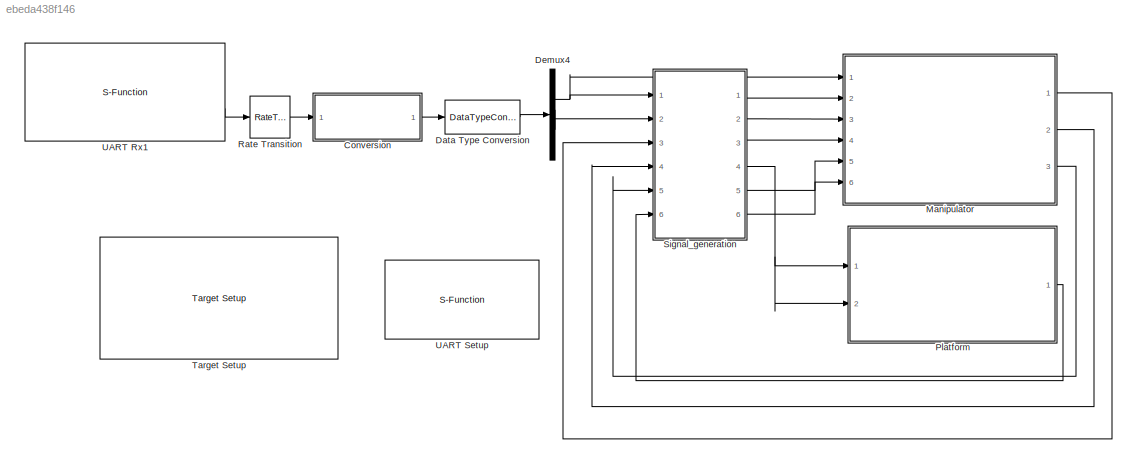
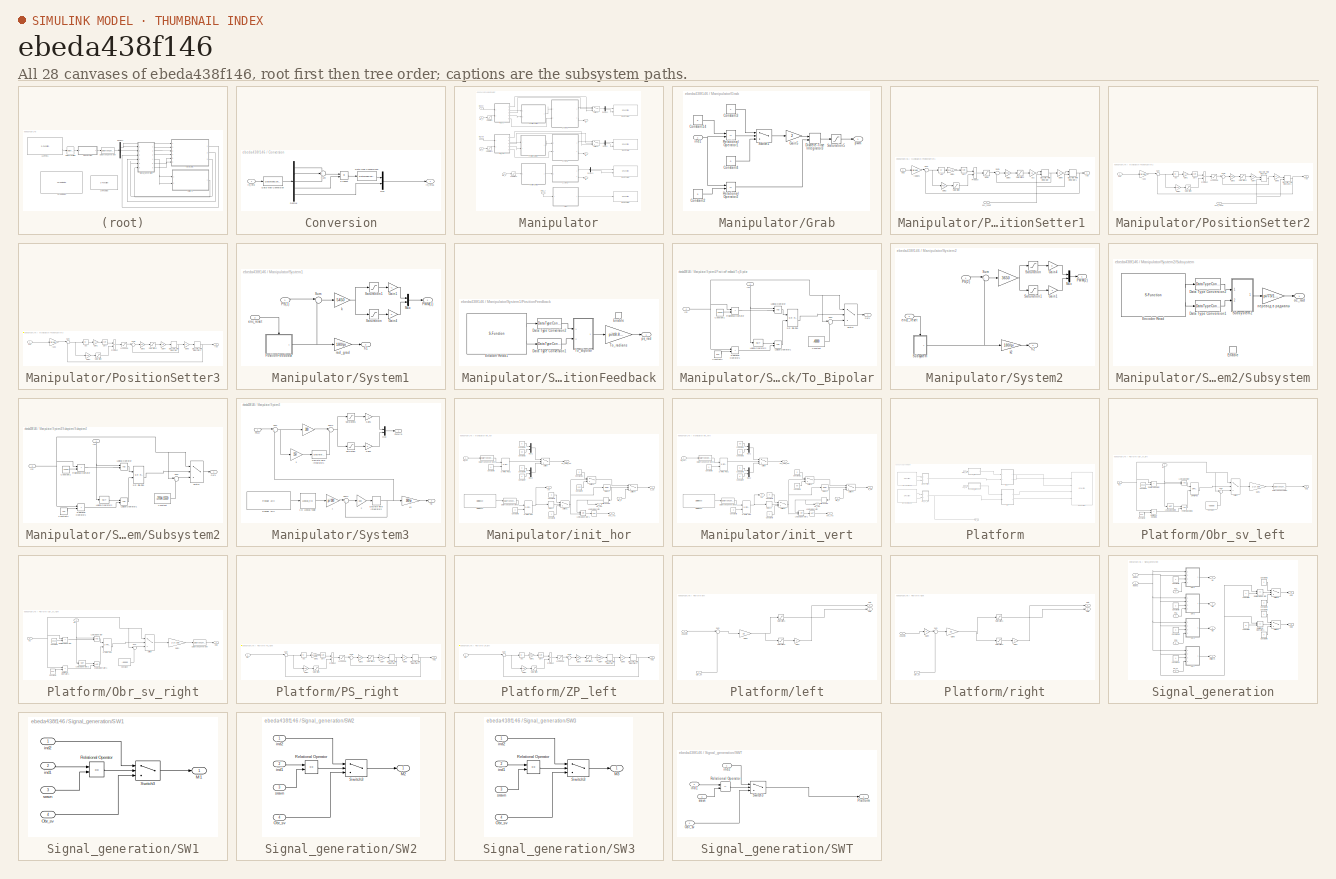
[diagram: thumbnail index - all 28 canvases of the model, root first then tree order]
MODEL slx_ebeda438f146
KIND model
CONFIG PreLoadFcn = waijung.modelPreload; % Required for working with Waijung Blockset. Do not remove.
BLOCK [SubSystem] Conversion
  Ports = [1, 1]
  RequestExecContextInheritance = off
BLOCK [DataTypeConversion] Conversion/Data Type Conversion
  OutDataTypeStr = int16
  RndMeth = Floor
  SaturateOnIntegerOverflow = off
BLOCK [DataTypeConversion] Conversion/Data Type Conversion2
  OutDataTypeStr = int16
  RndMeth = Floor
  SaturateOnIntegerOverflow = off
BLOCK [Demux] Conversion/Demux
  DisplayOption = bar
  Outputs = 5
  Ports = [1, 5]
BLOCK [Mux] Conversion/Mux
  DisplayOption = bar
  Inputs = 2
  Ports = [2, 1]
BLOCK [Product] Conversion/Product
  InputSameDT = off
  OutDataTypeStr = Inherit: Inherit via internal rule
  Ports = [2, 1]
  RndMeth = Floor
  SaturateOnIntegerOverflow = off
BLOCK [Sum] Conversion/Sum
  IconShape = round
  InputSameDT = off
  Inputs = +++
  OutDataTypeStr = Inherit: Inherit via internal rule
  Ports = [3, 1]
  SaturateOnIntegerOverflow = off
BLOCK [Outport] Conversion/in_int16
  IconDisplay = Port number
BLOCK [Inport] Conversion/in_int8
  IconDisplay = Port number
BLOCK [DataTypeConversion] Data Type Conversion
  RndMeth = Floor
  SaturateOnIntegerOverflow = off
BLOCK [Demux] Demux4
  DisplayOption = bar
  Outputs = 2
  Ports = [1, 2]
BLOCK [SubSystem] Manipulator
  Ports = [6, 3]
  RequestExecContextInheritance = off
BLOCK [S-Function] Manipulator/Basic PWM
  EnableBusSupport = off
  FunctionName = stm32f4_basicpwm
  Parameters = timer,pwmperiod,ch1pin,ch2pin,ch3pin,ch4pin,sampletime,sampletimestr,blockid,apb,portstr,pinstr,pinmat,timarr,timprescale,chmat,polaritystr
  Ports = [2]
BLOCK [S-Function] Manipulator/Basic PWM1
  EnableBusSupport = off
  FunctionName = stm32f4_basicpwm
  Parameters = timer,pwmperiod,ch1pin,ch2pin,ch3pin,ch4pin,sampletime,sampletimestr,blockid,apb,portstr,pinstr,pinmat,timarr,timprescale,chmat,polaritystr
  Ports = [2]
BLOCK [S-Function] Manipulator/Basic PWM2
  EnableBusSupport = off
  FunctionName = stm32f4_basicpwm
  Parameters = timer,pwmperiod,ch1pin,ch2pin,ch3pin,ch4pin,sampletime,sampletimestr,blockid,apb,portstr,pinstr,pinmat,timarr,timprescale,chmat,polaritystr
  Ports = [2]
BLOCK [S-Function] Manipulator/Basic PWM4
  EnableBusSupport = off
  FunctionName = stm32f4_basicpwm
  Parameters = timer,pwmperiod,ch1pin,ch2pin,ch3pin,ch4pin,sampletime,sampletimestr,blockid,apb,portstr,pinstr,pinmat,timarr,timprescale,chmat,polaritystr
  Ports = [1]
BLOCK [Demux] Manipulator/Demux
  DisplayOption = bar
  Outputs = 2
  Ports = [1, 2]
BLOCK [Demux] Manipulator/Demux1
  DisplayOption = bar
  Outputs = 2
  Ports = [1, 2]
BLOCK [Demux] Manipulator/Demux3
  DisplayOption = bar
  Outputs = 2
  Ports = [1, 2]
BLOCK [SubSystem] Manipulator/Grab
  Ports = [1, 1]
  RequestExecContextInheritance = off
BLOCK [Constant] Manipulator/Grab/Constant14
  OutDataTypeStr = double
  Value = 6
BLOCK [Constant] Manipulator/Grab/Constant2
  OutDataTypeStr = double
  Value = 9
BLOCK [Constant] Manipulator/Grab/Constant3
  OutDataTypeStr = double
BLOCK [Constant] Manipulator/Grab/Constant4
  OutDataTypeStr = double
  Value = 0
BLOCK [DiscreteIntegrator] Manipulator/Grab/Discrete-Time Integrator3
  ExternalReset = rising
  InitialCondition = 7
  Ports = [2, 1]
  SampleTime = 0.001
  gainval = 1
BLOCK [Gain] Manipulator/Grab/Gain5
  Gain = 2
  OutDataTypeStr = Inherit: Inherit via internal rule
  ParamDataTypeStr = Inherit: Inherit via internal rule
  SaturateOnIntegerOverflow = off
BLOCK [RelationalOperator] Manipulator/Grab/Relational Operator1
  InputSameDT = off
  Operator = ==
  OutDataTypeStr = boolean
  Ports = [2, 1]
BLOCK [RelationalOperator] Manipulator/Grab/Relational Operator2
  InputSameDT = off
  Operator = ==
  OutDataTypeStr = boolean
  Ports = [2, 1]
BLOCK [Saturate] Manipulator/Grab/Saturation5
  InputPortMap = u0
  LowerLimit = 7
  Ports = [1, 1]
  UpperLimit = 10
BLOCK [Switch] Manipulator/Grab/Switch1
  Criteria = u2 > Threshold
  InputSameDT = off
  SaturateOnIntegerOverflow = off
  Threshold = 0.5
BLOCK [Inport] Manipulator/Grab/ind1
  IconDisplay = Port number
BLOCK [Outport] Manipulator/Grab/pwm
  IconDisplay = Port number
BLOCK [Inport] Manipulator/Init_hor
  IconDisplay = Port number
  Port = 5
BLOCK [Inport] Manipulator/Init_vert
  IconDisplay = Port number
  Port = 6
BLOCK [Inport] Manipulator/M1_z
  IconDisplay = Port number
  Port = 2
BLOCK [Inport] Manipulator/M2_z
  IconDisplay = Port number
  Port = 3
BLOCK [Inport] Manipulator/M3_z
  IconDisplay = Port number
  Port = 4
BLOCK [SubSystem] Manipulator/PositionSetter1 
  Ports = [2, 1]
  RequestExecContextInheritance = off
BLOCK [Abs] Manipulator/PositionSetter1 /Abs
  SaturateOnIntegerOverflow = off
BLOCK [DiscreteIntegrator] Manipulator/PositionSetter1 /Discrete-Time Integrator
  ExternalReset = rising
  Ports = [2, 1]
  SampleTime = 0.001
BLOCK [DiscreteIntegrator] Manipulator/PositionSetter1 /Discrete-Time Integrator1
  ExternalReset = rising
  Ports = [2, 1]
  SampleTime = 0.001
BLOCK [Gain] Manipulator/PositionSetter1 /Gain1
  Gain = 2*1.1
  OutDataTypeStr = Inherit: Inherit via internal rule
  ParamDataTypeStr = Inherit: Inherit via internal rule
  SaturateOnIntegerOverflow = off
BLOCK [Gain] Manipulator/PositionSetter1 /Gain2
  Gain = 400
  OutDataTypeStr = Inherit: Inherit via internal rule
  ParamDataTypeStr = Inherit: Inherit via internal rule
  SaturateOnIntegerOverflow = off
BLOCK [Gain] Manipulator/PositionSetter1 /Gain3
  Gain = 400
  OutDataTypeStr = Inherit: Inherit via internal rule
  ParamDataTypeStr = Inherit: Inherit via internal rule
  SaturateOnIntegerOverflow = off
BLOCK [Gain] Manipulator/PositionSetter1 /Gain5
  OutDataTypeStr = Inherit: Inherit via internal rule
  ParamDataTypeStr = Inherit: Inherit via internal rule
  SaturateOnIntegerOverflow = off
BLOCK [Product] Manipulator/PositionSetter1 /Product
  InputSameDT = off
  OutDataTypeStr = Inherit: Inherit via internal rule
  Ports = [2, 1]
  RndMeth = Floor
  SaturateOnIntegerOverflow = off
BLOCK [Saturate] Manipulator/PositionSetter1 /Saturation
  InputPortMap = u0
  LowerLimit = -1
  Ports = [1, 1]
  UpperLimit = 1
BLOCK [Saturate] Manipulator/PositionSetter1 /Saturation2
  InputPortMap = u0
  LowerLimit = -1
  Ports = [1, 1]
  UpperLimit = 1
BLOCK [Sqrt] Manipulator/PositionSetter1 /Sqrt
BLOCK [Sum] Manipulator/PositionSetter1 /Sum
  IconShape = round
  InputSameDT = off
  Inputs = |+-
  OutDataTypeStr = Inherit: Inherit via internal rule
  Ports = [2, 1]
  SaturateOnIntegerOverflow = off
BLOCK [Sum] Manipulator/PositionSetter1 /Sum1
  IconShape = round
  InputSameDT = off
  Inputs = |+-
  OutDataTypeStr = Inherit: Inherit via internal rule
  Ports = [2, 1]
  SaturateOnIntegerOverflow = off
BLOCK [Gain] Manipulator/PositionSetter1 /acc
  Gain = 1.1
  OutDataTypeStr = Inherit: Inherit via internal rule
  ParamDataTypeStr = Inherit: Inherit via internal rule
  SaturateOnIntegerOverflow = off
BLOCK [Inport] Manipulator/PositionSetter1 /deg 
  IconDisplay = Port number
BLOCK [Inport] Manipulator/PositionSetter1 /ps1_reset
  IconDisplay = Port number
  Port = 2
BLOCK [Outport] Manipulator/PositionSetter1 /rad 
  IconDisplay = Port number
BLOCK [Gain] Manipulator/PositionSetter1 /radians
  Gain = pi/180
  OutDataTypeStr = Inherit: Inherit via internal rule
  ParamDataTypeStr = Inherit: Inherit via internal rule
  SaturateOnIntegerOverflow = off
BLOCK [Saturate] Manipulator/PositionSetter1 /wmax
  InputPortMap = u0
  LowerLimit = -0.8
  Ports = [1, 1]
  UpperLimit = 0.8
BLOCK [SubSystem] Manipulator/PositionSetter2
  Ports = [2, 1]
  RequestExecContextInheritance = off
BLOCK [Saturate] Manipulator/PositionSetter2/1=10 обор
  InputPortMap = u0
  LowerLimit = -0.8
  Ports = [1, 1]
  UpperLimit = 0.8
BLOCK [Abs] Manipulator/PositionSetter2/Abs
  SaturateOnIntegerOverflow = off
BLOCK [DiscreteIntegrator] Manipulator/PositionSetter2/Discrete-Time Integrator
  ExternalReset = rising
  Ports = [2, 1]
  SampleTime = 0.001
BLOCK [DiscreteIntegrator] Manipulator/PositionSetter2/Discrete-Time Integrator1
  ExternalReset = rising
  Ports = [2, 1]
  SampleTime = 0.001
BLOCK [Gain] Manipulator/PositionSetter2/Gain1
  Gain = 2
  OutDataTypeStr = Inherit: Inherit via internal rule
  ParamDataTypeStr = Inherit: Inherit via internal rule
  SaturateOnIntegerOverflow = off
BLOCK [Gain] Manipulator/PositionSetter2/Gain2
  Gain = 400
  OutDataTypeStr = Inherit: Inherit via internal rule
  ParamDataTypeStr = Inherit: Inherit via internal rule
  SaturateOnIntegerOverflow = off
BLOCK [Gain] Manipulator/PositionSetter2/Gain3
  Gain = 400
  OutDataTypeStr = Inherit: Inherit via internal rule
  ParamDataTypeStr = Inherit: Inherit via internal rule
  SaturateOnIntegerOverflow = off
BLOCK [Gain] Manipulator/PositionSetter2/Gain4
  Gain = 1.1
  OutDataTypeStr = Inherit: Inherit via internal rule
  ParamDataTypeStr = Inherit: Inherit via internal rule
  SaturateOnIntegerOverflow = off
BLOCK [Gain] Manipulator/PositionSetter2/Gain5
  OutDataTypeStr = Inherit: Inherit via internal rule
  ParamDataTypeStr = Inherit: Inherit via internal rule
  SaturateOnIntegerOverflow = off
BLOCK [Product] Manipulator/PositionSetter2/Product
  InputSameDT = off
  OutDataTypeStr = Inherit: Inherit via internal rule
  Ports = [2, 1]
  RndMeth = Floor
  SaturateOnIntegerOverflow = off
BLOCK [Saturate] Manipulator/PositionSetter2/Saturation
  InputPortMap = u0
  LowerLimit = -1
  Ports = [1, 1]
  UpperLimit = 1
BLOCK [Saturate] Manipulator/PositionSetter2/Saturation2
  InputPortMap = u0
  LowerLimit = -1
  Ports = [1, 1]
  UpperLimit = 1
BLOCK [Sqrt] Manipulator/PositionSetter2/Sqrt
BLOCK [Sum] Manipulator/PositionSetter2/Sum
  IconShape = round
  InputSameDT = off
  Inputs = |+-
  OutDataTypeStr = Inherit: Inherit via internal rule
  Ports = [2, 1]
  SaturateOnIntegerOverflow = off
BLOCK [Sum] Manipulator/PositionSetter2/Sum1
  IconShape = round
  InputSameDT = off
  Inputs = |+-
  OutDataTypeStr = Inherit: Inherit via internal rule
  Ports = [2, 1]
  SaturateOnIntegerOverflow = off
BLOCK [Inport] Manipulator/PositionSetter2/deg
  IconDisplay = Port number
BLOCK [Inport] Manipulator/PositionSetter2/ps2_reset
  IconDisplay = Port number
  Port = 2
BLOCK [Outport] Manipulator/PositionSetter2/rad
  IconDisplay = Port number
BLOCK [Gain] Manipulator/PositionSetter2/rads
  Gain = pi/180
  OutDataTypeStr = Inherit: Inherit via internal rule
  ParamDataTypeStr = Inherit: Inherit via internal rule
  SaturateOnIntegerOverflow = off
BLOCK [SubSystem] Manipulator/PositionSetter3
  Ports = [1, 1]
  RequestExecContextInheritance = off
BLOCK [Saturate] Manipulator/PositionSetter3/1=10 обор
  InputPortMap = u0
  LowerLimit = -2
  Ports = [1, 1]
  UpperLimit = 2
BLOCK [Abs] Manipulator/PositionSetter3/Abs
  SaturateOnIntegerOverflow = off
BLOCK [DiscreteIntegrator] Manipulator/PositionSetter3/Discrete-Time Integrator
  Ports = [1, 1]
  SampleTime = 0.001
BLOCK [DiscreteIntegrator] Manipulator/PositionSetter3/Discrete-Time Integrator1
  Ports = [1, 1]
  SampleTime = 0.001
BLOCK [Gain] Manipulator/PositionSetter3/Gain1
  Gain = 2
  OutDataTypeStr = Inherit: Inherit via internal rule
  ParamDataTypeStr = Inherit: Inherit via internal rule
  SaturateOnIntegerOverflow = off
BLOCK [Gain] Manipulator/PositionSetter3/Gain2
  Gain = 400
  OutDataTypeStr = Inherit: Inherit via internal rule
  ParamDataTypeStr = Inherit: Inherit via internal rule
  SaturateOnIntegerOverflow = off
BLOCK [Gain] Manipulator/PositionSetter3/Gain3
  Gain = 400
  OutDataTypeStr = Inherit: Inherit via internal rule
  ParamDataTypeStr = Inherit: Inherit via internal rule
  SaturateOnIntegerOverflow = off
BLOCK [Gain] Manipulator/PositionSetter3/Gain4
  Gain = 1.8
  OutDataTypeStr = Inherit: Inherit via internal rule
  ParamDataTypeStr = Inherit: Inherit via internal rule
  SaturateOnIntegerOverflow = off
BLOCK [Gain] Manipulator/PositionSetter3/Gain5
  OutDataTypeStr = Inherit: Inherit via internal rule
  ParamDataTypeStr = Inherit: Inherit via internal rule
  SaturateOnIntegerOverflow = off
BLOCK [Product] Manipulator/PositionSetter3/Product
  InputSameDT = off
  OutDataTypeStr = Inherit: Inherit via internal rule
  Ports = [2, 1]
  RndMeth = Floor
  SaturateOnIntegerOverflow = off
BLOCK [Saturate] Manipulator/PositionSetter3/Saturation
  InputPortMap = u0
  LowerLimit = -1
  Ports = [1, 1]
  UpperLimit = 1
BLOCK [Saturate] Manipulator/PositionSetter3/Saturation2
  InputPortMap = u0
  LowerLimit = -1
  Ports = [1, 1]
  UpperLimit = 1
BLOCK [Sqrt] Manipulator/PositionSetter3/Sqrt
BLOCK [Sum] Manipulator/PositionSetter3/Sum
  IconShape = round
  InputSameDT = off
  Inputs = |+-
  OutDataTypeStr = Inherit: Inherit via internal rule
  Ports = [2, 1]
  SaturateOnIntegerOverflow = off
BLOCK [Sum] Manipulator/PositionSetter3/Sum1
  IconShape = round
  InputSameDT = off
  Inputs = |+-
  OutDataTypeStr = Inherit: Inherit via internal rule
  Ports = [2, 1]
  SaturateOnIntegerOverflow = off
BLOCK [Inport] Manipulator/PositionSetter3/deg
  IconDisplay = Port number
BLOCK [Outport] Manipulator/PositionSetter3/rad
  IconDisplay = Port number
BLOCK [Gain] Manipulator/PositionSetter3/rads
  Gain = pi/180
  OutDataTypeStr = Inherit: Inherit via internal rule
  ParamDataTypeStr = Inherit: Inherit via internal rule
  SaturateOnIntegerOverflow = off
BLOCK [Saturate] Manipulator/Saturation
  InputPortMap = u0
  LowerLimit = -120
  Ports = [1, 1]
  UpperLimit = 120
BLOCK [Saturate] Manipulator/Saturation1
  InputPortMap = u0
  LowerLimit = -200
  Ports = [1, 1]
  UpperLimit = 35
BLOCK [Saturate] Manipulator/Saturation2
  InputPortMap = u0
  LowerLimit = -180
  Ports = [1, 1]
  UpperLimit = 180
BLOCK [Switch] Manipulator/Switch1
  Criteria = u2 > Threshold
  InputSameDT = off
  SaturateOnIntegerOverflow = off
  Threshold = 0.5
BLOCK [Switch] Manipulator/Switch2
  Criteria = u2 > Threshold
  InputSameDT = off
  SaturateOnIntegerOverflow = off
  Threshold = 0.5
BLOCK [SubSystem] Manipulator/System1
  Ports = [2, 2]
  RequestExecContextInheritance = off
BLOCK [Gain] Manipulator/System1/Gain1
  Gain = -1
  OutDataTypeStr = double
  ParamDataTypeStr = Inherit: Inherit via internal rule
  SaturateOnIntegerOverflow = off
BLOCK [Gain] Manipulator/System1/Gain4
  OutDataTypeStr = double
  ParamDataTypeStr = Inherit: Inherit via internal rule
  SaturateOnIntegerOverflow = off
BLOCK [Mux] Manipulator/System1/Mux
  DisplayOption = bar
  Inputs = 2
  Ports = [2, 1]
BLOCK [Inport] Manipulator/System1/PS(1)
  IconDisplay = Port number
BLOCK [Outport] Manipulator/System1/PWM(1)
  IconDisplay = Port number
BLOCK [SubSystem] Manipulator/System1/PositionFeedback
  Ports = [0, 1, 1]
  RequestExecContextInheritance = off
BLOCK [DataTypeConversion] Manipulator/System1/PositionFeedback/Data Type Conversion1
  OutDataTypeStr = double
  RndMeth = Floor
  SaturateOnIntegerOverflow = off
BLOCK [DataTypeConversion] Manipulator/System1/PositionFeedback/Data Type Conversion2
  OutDataTypeStr = double
  RndMeth = Floor
  SaturateOnIntegerOverflow = off
BLOCK [EnablePort] Manipulator/System1/PositionFeedback/Enable
  Ports = []
BLOCK [S-Function] Manipulator/System1/PositionFeedback/Encoder Read1
  EnableBusSupport = off
  FunctionName = stm32f4_encoderread
  Parameters = sampletime,sampletimestr,blockid,timer,apb,portstr,pinstr,pinmat,chmat,filterstr,filter,factor,rstcnt,ppr
  Ports = [0, 2]
BLOCK [SubSystem] Manipulator/System1/PositionFeedback/To_Bipolar
  Ports = [2, 1]
  RequestExecContextInheritance = off
BLOCK [Constant] Manipulator/System1/PositionFeedback/To_Bipolar/Constant
  Value = -40000
BLOCK [Constant] Manipulator/System1/PositionFeedback/To_Bipolar/Constant1
  Value = 39500
BLOCK [Constant] Manipulator/System1/PositionFeedback/To_Bipolar/Constant2
  Value = 500
BLOCK [Inport] Manipulator/System1/PositionFeedback/To_Bipolar/In1
  IconDisplay = Port number
BLOCK [Inport] Manipulator/System1/PositionFeedback/To_Bipolar/In2
  IconDisplay = Port number
  Port = 2
BLOCK [Logic] Manipulator/System1/PositionFeedback/To_Bipolar/Logical Operator
  AllPortsSameDT = off
  OutDataTypeStr = boolean
  Ports = [2, 1]
BLOCK [Logic] Manipulator/System1/PositionFeedback/To_Bipolar/Logical Operator1
  AllPortsSameDT = off
  OutDataTypeStr = boolean
  Ports = [2, 1]
BLOCK [Logic] Manipulator/System1/PositionFeedback/To_Bipolar/Logical Operator2
  AllPortsSameDT = off
  Operator = NOT
  OutDataTypeStr = boolean
  Ports = [1, 1]
BLOCK [Outport] Manipulator/System1/PositionFeedback/To_Bipolar/Out1
  IconDisplay = Port number
BLOCK [RelationalOperator] Manipulator/System1/PositionFeedback/To_Bipolar/Relational Operator
  InputSameDT = off
  Operator = >
  OutDataTypeStr = boolean
  Ports = [2, 1]
BLOCK [RelationalOperator] Manipulator/System1/PositionFeedback/To_Bipolar/Relational Operator1
  InputSameDT = off
  Operator = <
  OutDataTypeStr = boolean
  Ports = [2, 1]
BLOCK [Reference] Manipulator/System1/PositionFeedback/To_Bipolar/S-R Flip-Flop  REF=simulink_extras/Flip Flops/S-R
Flip-Flop
  Ports = [2, 2]
  SourceBlock = simulink_extras/Flip Flops/S-R\nFlip-Flop
  SourceType = SRFlipFlop
  initial_condition = 0
BLOCK [Sum] Manipulator/System1/PositionFeedback/To_Bipolar/Sum
  IconShape = round
  InputSameDT = off
  Inputs = |++
  OutDataTypeStr = Inherit: Inherit via internal rule
  Ports = [2, 1]
  SaturateOnIntegerOverflow = off
BLOCK [Switch] Manipulator/System1/PositionFeedback/To_Bipolar/Switch
  Criteria = u2 > Threshold
  InputSameDT = off
  SaturateOnIntegerOverflow = off
BLOCK [Gain] Manipulator/System1/PositionFeedback/To_radians
  Gain = pi/48.8/180
  OutDataTypeStr = Inherit: Inherit via internal rule
  ParamDataTypeStr = Inherit: Inherit via internal rule
  SaturateOnIntegerOverflow = off
BLOCK [Outport] Manipulator/System1/PositionFeedback/ps_rad
  IconDisplay = Port number
BLOCK [Saturate] Manipulator/System1/Saturation
  InputPortMap = u0
  LowerLimit = 0
  Ports = [1, 1]
  SampleTime = 0.001
  UpperLimit = 40
BLOCK [Saturate] Manipulator/System1/Saturation1
  InputPortMap = u0
  LowerLimit = -40
  Ports = [1, 1]
  SampleTime = 0.001
  UpperLimit = 0
BLOCK [Sum] Manipulator/System1/Sum
  IconShape = round
  InputSameDT = off
  Inputs = |+-
  OutDataTypeStr = Inherit: Inherit via internal rule
  Ports = [2, 1]
  SaturateOnIntegerOverflow = off
BLOCK [Inport] Manipulator/System1/enc_reset
  IconDisplay = Port number
  Port = 2
BLOCK [Outport] Manipulator/System1/fi1
  IconDisplay = Port number
  Port = 2
BLOCK [Gain] Manipulator/System1/k
  Gain = 5450
  OutDataTypeStr = Inherit: Inherit via internal rule
  ParamDataTypeStr = Inherit: Inherit via internal rule
  SaturateOnIntegerOverflow = off
BLOCK [Gain] Manipulator/System1/rad_grad
  Gain = 180/pi
  OutDataTypeStr = Inherit: Inherit via internal rule
  ParamDataTypeStr = Inherit: Inherit via internal rule
  SaturateOnIntegerOverflow = off
BLOCK [SubSystem] Manipulator/System2
  Ports = [2, 2]
  RequestExecContextInheritance = off
BLOCK [Gain] Manipulator/System2/ 
  Gain = 3650
  OutDataTypeStr = Inherit: Inherit via internal rule
  ParamDataTypeStr = Inherit: Inherit via internal rule
  SaturateOnIntegerOverflow = off
BLOCK [Gain] Manipulator/System2/Gain1
  Gain = -1
  OutDataTypeStr = double
  ParamDataTypeStr = Inherit: Inherit via internal rule
  SaturateOnIntegerOverflow = off
BLOCK [Gain] Manipulator/System2/Gain4
  OutDataTypeStr = double
  ParamDataTypeStr = Inherit: Inherit via internal rule
  SaturateOnIntegerOverflow = off
BLOCK [Mux] Manipulator/System2/Mux
  DisplayOption = bar
  Inputs = 2
  Ports = [2, 1]
BLOCK [Inport] Manipulator/System2/PS(2)
  IconDisplay = Port number
BLOCK [Outport] Manipulator/System2/PWM(2)
  IconDisplay = Port number
BLOCK [Saturate] Manipulator/System2/Saturation
  InputPortMap = u0
  LowerLimit = 0
  Ports = [1, 1]
  SampleTime = 0.001
  UpperLimit = 100
BLOCK [Saturate] Manipulator/System2/Saturation1
  InputPortMap = u0
  LowerLimit = -100
  Ports = [1, 1]
  SampleTime = 0.001
  UpperLimit = 0
BLOCK [SubSystem] Manipulator/System2/Subsystem
  Ports = [0, 1, 1]
  RequestExecContextInheritance = off
BLOCK [DataTypeConversion] Manipulator/System2/Subsystem/Data Type Conversion1
  OutDataTypeStr = double
  RndMeth = Floor
  SaturateOnIntegerOverflow = off
BLOCK [DataTypeConversion] Manipulator/System2/Subsystem/Data Type Conversion2
  OutDataTypeStr = double
  RndMeth = Floor
  SaturateOnIntegerOverflow = off
BLOCK [EnablePort] Manipulator/System2/Subsystem/Enable
  Ports = []
BLOCK [S-Function] Manipulator/System2/Subsystem/Encoder Read
  EnableBusSupport = off
  FunctionName = stm32f4_encoderread
  Parameters = sampletime,sampletimestr,blockid,timer,apb,portstr,pinstr,pinmat,chmat,filterstr,filter,factor,rstcnt,ppr
  Ports = [0, 2]
BLOCK [SubSystem] Manipulator/System2/Subsystem/Subsystem2
  Ports = [2, 1]
  RequestExecContextInheritance = off
BLOCK [Constant] Manipulator/System2/Subsystem/Subsystem2/Constant
  Value = -27034-15559
BLOCK [Constant] Manipulator/System2/Subsystem/Subsystem2/Constant1
  Value = 42000
BLOCK [Constant] Manipulator/System2/Subsystem/Subsystem2/Constant2
  Value = 100
BLOCK [Inport] Manipulator/System2/Subsystem/Subsystem2/In1
  IconDisplay = Port number
BLOCK [Inport] Manipulator/System2/Subsystem/Subsystem2/In2
  IconDisplay = Port number
  Port = 2
BLOCK [Logic] Manipulator/System2/Subsystem/Subsystem2/Logical Operator
  AllPortsSameDT = off
  OutDataTypeStr = boolean
  Ports = [2, 1]
BLOCK [Logic] Manipulator/System2/Subsystem/Subsystem2/Logical Operator1
  AllPortsSameDT = off
  OutDataTypeStr = boolean
  Ports = [2, 1]
BLOCK [Logic] Manipulator/System2/Subsystem/Subsystem2/Logical Operator2
  AllPortsSameDT = off
  Operator = NOT
  OutDataTypeStr = boolean
  Ports = [1, 1]
BLOCK [Outport] Manipulator/System2/Subsystem/Subsystem2/Out1
  IconDisplay = Port number
BLOCK [RelationalOperator] Manipulator/System2/Subsystem/Subsystem2/Relational Operator
  InputSameDT = off
  Operator = >
  OutDataTypeStr = boolean
  Ports = [2, 1]
BLOCK [RelationalOperator] Manipulator/System2/Subsystem/Subsystem2/Relational Operator1
  InputSameDT = off
  Operator = <
  OutDataTypeStr = boolean
  Ports = [2, 1]
BLOCK [Reference] Manipulator/System2/Subsystem/Subsystem2/S-R Flip-Flop  REF=simulink_extras/Flip Flops/S-R
Flip-Flop
  Ports = [2, 2]
  SourceBlock = simulink_extras/Flip Flops/S-R\nFlip-Flop
  SourceType = SRFlipFlop
  initial_condition = 0
BLOCK [Sum] Manipulator/System2/Subsystem/Subsystem2/Sum
  IconShape = round
  InputSameDT = off
  Inputs = |++
  OutDataTypeStr = Inherit: Inherit via internal rule
  Ports = [2, 1]
  SaturateOnIntegerOverflow = off
BLOCK [Switch] Manipulator/System2/Subsystem/Subsystem2/Switch
  Criteria = u2 > Threshold
  InputSameDT = off
  SaturateOnIntegerOverflow = off
BLOCK [Outport] Manipulator/System2/Subsystem/oc_rad
  IconDisplay = Port number
BLOCK [Gain] Manipulator/System2/Subsystem/перевод в радианы
  Gain = pi/73/180
  OutDataTypeStr = Inherit: Inherit via internal rule
  ParamDataTypeStr = Inherit: Inherit via internal rule
  SaturateOnIntegerOverflow = off
BLOCK [Sum] Manipulator/System2/Sum
  IconShape = round
  InputSameDT = off
  Inputs = |+-
  OutDataTypeStr = Inherit: Inherit via internal rule
  Ports = [2, 1]
  SaturateOnIntegerOverflow = off
BLOCK [Inport] Manipulator/System2/enc2_reset
  IconDisplay = Port number
  Port = 2
BLOCK [Outport] Manipulator/System2/fi2
  IconDisplay = Port number
  Port = 2
BLOCK [Gain] Manipulator/System2/k2
  Gain = 180/pi
  OutDataTypeStr = Inherit: Inherit via internal rule
  ParamDataTypeStr = Inherit: Inherit via internal rule
  SaturateOnIntegerOverflow = off
BLOCK [SubSystem] Manipulator/System3
  Ports = [1, 2]
  RequestExecContextInheritance = off
BLOCK [Gain] Manipulator/System3/ 
  Gain = 300
  OutDataTypeStr = Inherit: Inherit via internal rule
  ParamDataTypeStr = Inherit: Inherit via internal rule
  SaturateOnIntegerOverflow = off
BLOCK [Gain] Manipulator/System3/ 1
  Gain = pi/180
  OutDataTypeStr = Inherit: Inherit via internal rule
  ParamDataTypeStr = Inherit: Inherit via internal rule
  SaturateOnIntegerOverflow = off
BLOCK [Gain] Manipulator/System3/ 2
  Gain = 300
  OutDataTypeStr = Inherit: Inherit via internal rule
  ParamDataTypeStr = Inherit: Inherit via internal rule
  SaturateOnIntegerOverflow = off
BLOCK [Gain] Manipulator/System3/ 3
  Gain = 150
  OutDataTypeStr = Inherit: Inherit via internal rule
  ParamDataTypeStr = Inherit: Inherit via internal rule
  SaturateOnIntegerOverflow = off
BLOCK [Lookup_n-D] Manipulator/System3/1-D Lookup Table
  BreakpointsForDimension1 = [0 645 1470 2290 3115]
  InternalRulePriority = Speed
  NumberOfTableDimensions = 1
  Ports = [1, 1]
  RndMeth = Simplest
  Table = [-180 -90 0 90 180]
BLOCK [DiscreteIntegrator] Manipulator/System3/Discrete-Time Integrator1
  LimitOutput = on
  LowerSaturationLimit = -50
  Ports = [1, 1]
  SampleTime = 0.001
  UpperSaturationLimit = 50
BLOCK [DiscreteIntegrator] Manipulator/System3/Discrete-Time Integrator2
  Ports = [1, 1]
  SampleTime = 0.001
BLOCK [Gain] Manipulator/System3/Gain1
  Gain = -1
  OutDataTypeStr = double
  ParamDataTypeStr = Inherit: Inherit via internal rule
  SaturateOnIntegerOverflow = off
BLOCK [Gain] Manipulator/System3/Gain4
  OutDataTypeStr = double
  ParamDataTypeStr = Inherit: Inherit via internal rule
  SaturateOnIntegerOverflow = off
BLOCK [Mux] Manipulator/System3/Mux
  DisplayOption = bar
  Inputs = 2
  Ports = [2, 1]
BLOCK [Inport] Manipulator/System3/PS(2)
  IconDisplay = Port number
BLOCK [Outport] Manipulator/System3/PWM(3)
  IconDisplay = Port number
BLOCK [Reference] Manipulator/System3/Regular ADC  REF=stm32f4_adc_lib/Regular ADC
  Ports = [0, 1]
  SourceBlock = stm32f4_adc_lib/Regular ADC
  SourceType = stm32f4_regular_adc
  adcmodule = 1
  blockid = ManipulatorSystem3RegularADC
  chsamplingtime = Auto
  chsamplingtimestr = ADC_SampleTime_480Cycles
  cinputportlabel = 0
  coutputportlabel = Out1, Out2
  enablecustomportlabel = off
  outputdatatype = Double
  pinstr = GPIO_Pin_11
  prescaler = 2
  prescalerstr = ADC_Prescaler_Div2
  read_an0 = off
  read_an1 = off
  read_an10 = off
  read_an11 = on
  read_an12 = off
  read_an13 = off
  read_an14 = off
  read_an15 = off
  read_an16 = off
  read_an17 = off
  read_an18 = off
  read_an2 = off
  read_an3 = off
  read_an4 = off
  read_an5 = off
  read_an6 = off
  read_an7 = off
  read_an8 = off
  read_an9 = off
  sampletime = 0.001
  usedpinarray = [0  0  0  0  0  0  0  0  0  0  0  1  0  0  0  0  0  0  0]
  usedpinidarray = [1]
  usedpinidcount = 1
  usedportidarray = [2]
BLOCK [Saturate] Manipulator/System3/Saturation
  InputPortMap = u0
  LowerLimit = 0
  Ports = [1, 1]
  SampleTime = 0.001
  UpperLimit = 80
BLOCK [Saturate] Manipulator/System3/Saturation1
  InputPortMap = u0
  LowerLimit = -80
  Ports = [1, 1]
  SampleTime = 0.001
  UpperLimit = 0
BLOCK [Sum] Manipulator/System3/Sum
  IconShape = round
  InputSameDT = off
  Inputs = |+-
  OutDataTypeStr = Inherit: Inherit via internal rule
  Ports = [2, 1]
  SaturateOnIntegerOverflow = off
BLOCK [Sum] Manipulator/System3/Sum1
  IconShape = round
  InputSameDT = off
  Inputs = |+-
  OutDataTypeStr = Inherit: Inherit via internal rule
  Ports = [2, 1]
  SaturateOnIntegerOverflow = off
BLOCK [Sum] Manipulator/System3/Sum2
  IconShape = round
  InputSameDT = off
  Inputs = |++
  OutDataTypeStr = Inherit: Inherit via internal rule
  Ports = [2, 1]
  SaturateOnIntegerOverflow = off
BLOCK [Outport] Manipulator/System3/fi3
  IconDisplay = Port number
  Port = 2
BLOCK [Gain] Manipulator/System3/k3
  Gain = 180/pi
  OutDataTypeStr = Inherit: Inherit via internal rule
  ParamDataTypeStr = Inherit: Inherit via internal rule
  SaturateOnIntegerOverflow = off
BLOCK [Outport] Manipulator/fi1
  IconDisplay = Port number
BLOCK [Outport] Manipulator/fi2
  IconDisplay = Port number
  Port = 2
BLOCK [Outport] Manipulator/fi3
  IconDisplay = Port number
  Port = 3
BLOCK [Inport] Manipulator/grab_z
  IconDisplay = Port number
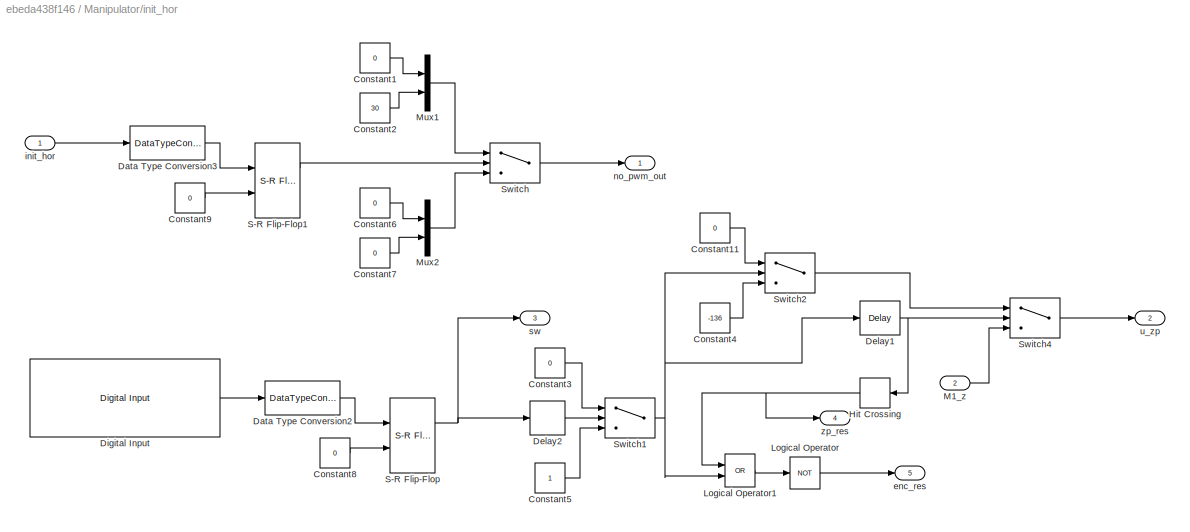
BLOCK [SubSystem] Manipulator/init_hor
  Ports = [2, 5]
  RequestExecContextInheritance = off
BLOCK [Constant] Manipulator/init_hor/Constant1
  Value = 0
BLOCK [Constant] Manipulator/init_hor/Constant11
  Value = 0
BLOCK [Constant] Manipulator/init_hor/Constant2
  Value = 30
BLOCK [Constant] Manipulator/init_hor/Constant3
  Value = 0
BLOCK [Constant] Manipulator/init_hor/Constant4
  Value = -136
BLOCK [Constant] Manipulator/init_hor/Constant5
BLOCK [Constant] Manipulator/init_hor/Constant6
  Value = 0
BLOCK [Constant] Manipulator/init_hor/Constant7
  Value = 0
BLOCK [Constant] Manipulator/init_hor/Constant8
  OutDataTypeStr = boolean
  Value = 0
BLOCK [Constant] Manipulator/init_hor/Constant9
  OutDataTypeStr = boolean
  Value = 0
BLOCK [DataTypeConversion] Manipulator/init_hor/Data Type Conversion2
  RndMeth = Floor
  SaturateOnIntegerOverflow = off
BLOCK [DataTypeConversion] Manipulator/init_hor/Data Type Conversion3
  RndMeth = Floor
  SaturateOnIntegerOverflow = off
BLOCK [Delay] Manipulator/init_hor/Delay1
  DelayLength = 4000
  InputPortMap = u0
  Ports = [1, 1]
BLOCK [Delay] Manipulator/init_hor/Delay2
  DelayLength = 500
  InputPortMap = u0
  Ports = [1, 1]
BLOCK [Reference] Manipulator/init_hor/Digital Input  REF=stm32f4_io_lib/Digital Input
  Ports = [0, 1]
  SourceBlock = stm32f4_io_lib/Digital Input
  SourceType = stm32f4_digital_input
  bitbandingstr = #define Manipulatorinit_horDigitalInput_B3 Peripheral_BB(GPIOB->IDR, 3)  /* Output pin */
  blockid = Manipulatorinit_horDigitalInput
  cinputportlabel = In1, In2
  coutputportlabel = Out1, Out2
  enablecustomportlabel = off
  glabalinit = off
  pinstr = GPIO_Pin_3
  port = B
  porttype = None
  porttypestr = NOPULL
  sampletime = 0.001
  sampletimestr = -1
  speed = 100
  use_pin0 = off
  use_pin1 = off
  use_pin10 = off
  use_pin11 = off
  use_pin12 = off
  use_pin13 = off
  use_pin14 = off
  use_pin15 = off
  use_pin2 = off
  use_pin3 = on
  use_pin4 = off
  use_pin5 = off
  use_pin6 = off
  use_pin7 = off
  use_pin8 = off
  use_pin9 = off
  usedpinarray = [0  0  0  1  0  0  0  0  0  0  0  0  0  0  0  0]
BLOCK [HitCross] Manipulator/init_hor/Hit Crossing
  HitCrossingDirection = falling
  HitCrossingOffset = 0.5
  Ports = [1, 1]
BLOCK [Logic] Manipulator/init_hor/Logical Operator
  AllPortsSameDT = off
  Operator = NOT
  OutDataTypeStr = boolean
  Ports = [1, 1]
BLOCK [Logic] Manipulator/init_hor/Logical Operator1
  AllPortsSameDT = off
  Operator = OR
  OutDataTypeStr = boolean
  Ports = [2, 1]
BLOCK [Inport] Manipulator/init_hor/M1_z
  IconDisplay = Port number
  Port = 2
BLOCK [Mux] Manipulator/init_hor/Mux1
  DisplayOption = bar
  Inputs = 2
  Ports = [2, 1]
BLOCK [Mux] Manipulator/init_hor/Mux2
  DisplayOption = bar
  Inputs = 2
  Ports = [2, 1]
BLOCK [Reference] Manipulator/init_hor/S-R Flip-Flop  REF=simulink_extras/Flip Flops/S-R
Flip-Flop
  Ports = [2, 2]
  SourceBlock = simulink_extras/Flip Flops/S-R\nFlip-Flop
  SourceType = SRFlipFlop
  initial_condition = 0
BLOCK [Reference] Manipulator/init_hor/S-R Flip-Flop1  REF=simulink_extras/Flip Flops/S-R
Flip-Flop
  Ports = [2, 2]
  SourceBlock = simulink_extras/Flip Flops/S-R\nFlip-Flop
  SourceType = SRFlipFlop
  initial_condition = 0
BLOCK [Switch] Manipulator/init_hor/Switch
  Criteria = u2 > Threshold
  InputSameDT = off
  SaturateOnIntegerOverflow = off
  Threshold = 0.5
BLOCK [Switch] Manipulator/init_hor/Switch1
  Criteria = u2 > Threshold
  InputSameDT = off
  SaturateOnIntegerOverflow = off
  Threshold = 0.5
BLOCK [Switch] Manipulator/init_hor/Switch2
  Criteria = u2 > Threshold
  InputSameDT = off
  SaturateOnIntegerOverflow = off
  Threshold = 0.5
BLOCK [Switch] Manipulator/init_hor/Switch4
  Criteria = u2 > Threshold
  InputSameDT = off
  SaturateOnIntegerOverflow = off
  Threshold = 0.5
BLOCK [Outport] Manipulator/init_hor/enc_res
  IconDisplay = Port number
  Port = 5
BLOCK [Inport] Manipulator/init_hor/init_hor
  IconDisplay = Port number
BLOCK [Outport] Manipulator/init_hor/no_pwm_out
  IconDisplay = Port number
BLOCK [Outport] Manipulator/init_hor/sw
  IconDisplay = Port number
  Port = 3
BLOCK [Outport] Manipulator/init_hor/u_zp
  IconDisplay = Port number
  Port = 2
BLOCK [Outport] Manipulator/init_hor/zp_res
  IconDisplay = Port number
  Port = 4
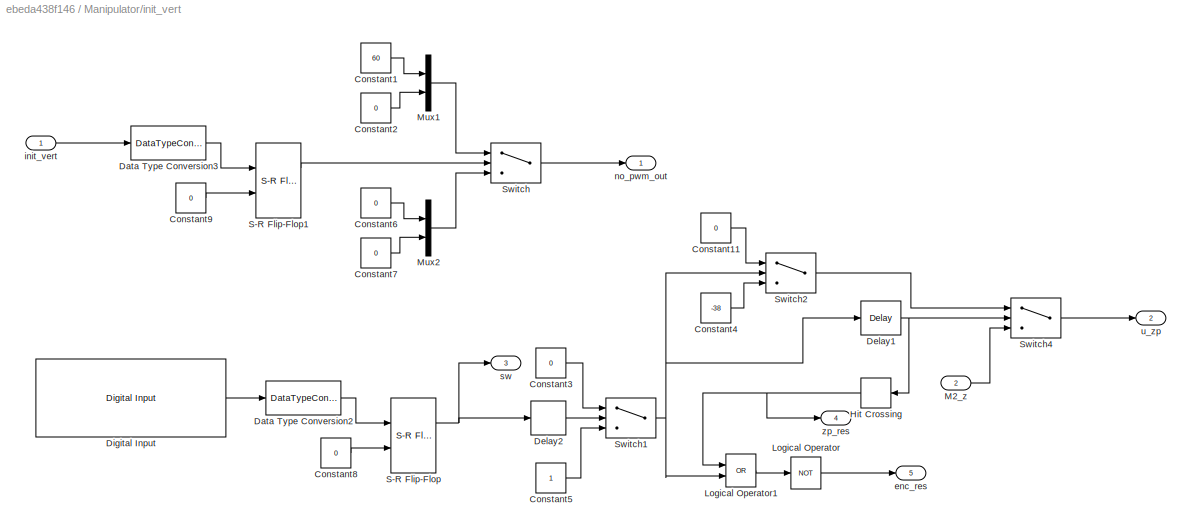
BLOCK [SubSystem] Manipulator/init_vert
  Ports = [2, 5]
  RequestExecContextInheritance = off
BLOCK [Constant] Manipulator/init_vert/Constant1
  Value = 60
BLOCK [Constant] Manipulator/init_vert/Constant11
  Value = 0
BLOCK [Constant] Manipulator/init_vert/Constant2
  Value = 0
BLOCK [Constant] Manipulator/init_vert/Constant3
  Value = 0
BLOCK [Constant] Manipulator/init_vert/Constant4
  Value = -38
BLOCK [Constant] Manipulator/init_vert/Constant5
BLOCK [Constant] Manipulator/init_vert/Constant6
  Value = 0
BLOCK [Constant] Manipulator/init_vert/Constant7
  Value = 0
BLOCK [Constant] Manipulator/init_vert/Constant8
  OutDataTypeStr = boolean
  Value = 0
BLOCK [Constant] Manipulator/init_vert/Constant9
  OutDataTypeStr = boolean
  Value = 0
BLOCK [DataTypeConversion] Manipulator/init_vert/Data Type Conversion2
  RndMeth = Floor
  SaturateOnIntegerOverflow = off
BLOCK [DataTypeConversion] Manipulator/init_vert/Data Type Conversion3
  RndMeth = Floor
  SaturateOnIntegerOverflow = off
BLOCK [Delay] Manipulator/init_vert/Delay1
  DelayLength = 3000
  InputPortMap = u0
  Ports = [1, 1]
BLOCK [Delay] Manipulator/init_vert/Delay2
  DelayLength = 500
  InputPortMap = u0
  Ports = [1, 1]
BLOCK [Reference] Manipulator/init_vert/Digital Input  REF=stm32f4_io_lib/Digital Input
  Ports = [0, 1]
  SourceBlock = stm32f4_io_lib/Digital Input
  SourceType = stm32f4_digital_input
  bitbandingstr = #define Manipulatorinit_vertDigitalInput_D0 Peripheral_BB(GPIOD->IDR, 0)  /* Output pin */
  blockid = Manipulatorinit_vertDigitalInput
  cinputportlabel = In1, In2
  coutputportlabel = Out1, Out2
  enablecustomportlabel = off
  glabalinit = off
  pinstr = GPIO_Pin_0
  port = D
  porttype = None
  porttypestr = NOPULL
  sampletime = 0.001
  sampletimestr = -1
  speed = 100
  use_pin0 = on
  use_pin1 = off
  use_pin10 = off
  use_pin11 = off
  use_pin12 = off
  use_pin13 = off
  use_pin14 = off
  use_pin15 = off
  use_pin2 = off
  use_pin3 = off
  use_pin4 = off
  use_pin5 = off
  use_pin6 = off
  use_pin7 = off
  use_pin8 = off
  use_pin9 = off
  usedpinarray = [1  0  0  0  0  0  0  0  0  0  0  0  0  0  0  0]
BLOCK [HitCross] Manipulator/init_vert/Hit Crossing
  HitCrossingDirection = falling
  HitCrossingOffset = 0.5
  Ports = [1, 1]
BLOCK [Logic] Manipulator/init_vert/Logical Operator
  AllPortsSameDT = off
  Operator = NOT
  OutDataTypeStr = boolean
  Ports = [1, 1]
BLOCK [Logic] Manipulator/init_vert/Logical Operator1
  AllPortsSameDT = off
  Operator = OR
  OutDataTypeStr = boolean
  Ports = [2, 1]
BLOCK [Inport] Manipulator/init_vert/M2_z
  IconDisplay = Port number
  Port = 2
BLOCK [Mux] Manipulator/init_vert/Mux1
  DisplayOption = bar
  Inputs = 2
  Ports = [2, 1]
BLOCK [Mux] Manipulator/init_vert/Mux2
  DisplayOption = bar
  Inputs = 2
  Ports = [2, 1]
BLOCK [Reference] Manipulator/init_vert/S-R Flip-Flop  REF=simulink_extras/Flip Flops/S-R
Flip-Flop
  Ports = [2, 2]
  SourceBlock = simulink_extras/Flip Flops/S-R\nFlip-Flop
  SourceType = SRFlipFlop
  initial_condition = 0
BLOCK [Reference] Manipulator/init_vert/S-R Flip-Flop1  REF=simulink_extras/Flip Flops/S-R
Flip-Flop
  Ports = [2, 2]
  SourceBlock = simulink_extras/Flip Flops/S-R\nFlip-Flop
  SourceType = SRFlipFlop
  initial_condition = 0
BLOCK [Switch] Manipulator/init_vert/Switch
  Criteria = u2 > Threshold
  InputSameDT = off
  SaturateOnIntegerOverflow = off
  Threshold = 0.5
BLOCK [Switch] Manipulator/init_vert/Switch1
  Criteria = u2 > Threshold
  InputSameDT = off
  SaturateOnIntegerOverflow = off
  Threshold = 0.5
BLOCK [Switch] Manipulator/init_vert/Switch2
  Criteria = u2 > Threshold
  InputSameDT = off
  SaturateOnIntegerOverflow = off
  Threshold = 0.5
BLOCK [Switch] Manipulator/init_vert/Switch4
  Criteria = u2 > Threshold
  InputSameDT = off
  SaturateOnIntegerOverflow = off
  Threshold = 0.5
BLOCK [Outport] Manipulator/init_vert/enc_res
  IconDisplay = Port number
  Port = 5
BLOCK [Inport] Manipulator/init_vert/init_vert
  IconDisplay = Port number
BLOCK [Outport] Manipulator/init_vert/no_pwm_out
  IconDisplay = Port number
BLOCK [Outport] Manipulator/init_vert/sw
  IconDisplay = Port number
  Port = 3
BLOCK [Outport] Manipulator/init_vert/u_zp
  IconDisplay = Port number
  Port = 2
BLOCK [Outport] Manipulator/init_vert/zp_res
  IconDisplay = Port number
  Port = 4
BLOCK [SubSystem] Platform
  Ports = [2, 1]
  RequestExecContextInheritance = off
BLOCK [S-Function] Platform/Basic PWM1
  EnableBusSupport = off
  FunctionName = stm32f4_basicpwm
  Parameters = timer,pwmperiod,ch1pin,ch2pin,ch3pin,ch4pin,sampletime,sampletimestr,blockid,apb,portstr,pinstr,pinmat,timarr,timprescale,chmat,polaritystr
  Ports = [4]
BLOCK [S-Function] Platform/Encoder Read
  EnableBusSupport = off
  FunctionName = stm32f4_encoderread
  Parameters = sampletime,sampletimestr,blockid,timer,apb,portstr,pinstr,pinmat,chmat,filterstr,filter,factor,rstcnt,ppr
  Ports = [0, 2]
BLOCK [S-Function] Platform/Encoder Read1
  EnableBusSupport = off
  FunctionName = stm32f4_encoderread
  Parameters = sampletime,sampletimestr,blockid,timer,apb,portstr,pinstr,pinmat,chmat,filterstr,filter,factor,rstcnt,ppr
  Ports = [0, 2]
BLOCK [Inport] Platform/Left_cm
  IconDisplay = Port number
  Port = 2
BLOCK [SubSystem] Platform/Obr_sv_left
  Ports = [2, 1]
  RequestExecContextInheritance = off
BLOCK [Constant] Platform/Obr_sv_left/Constant
  Value = -60000
BLOCK [Constant] Platform/Obr_sv_left/Constant1
  Value = 59500
BLOCK [Constant] Platform/Obr_sv_left/Constant2
  Value = 500
BLOCK [DataTypeConversion] Platform/Obr_sv_left/Data Type Conversion
  OutDataTypeStr = double
  RndMeth = Floor
  SaturateOnIntegerOverflow = off
BLOCK [Gain] Platform/Obr_sv_left/Gain1
  Gain = 1/17.306
  OutDataTypeStr = Inherit: Inherit via internal rule
  ParamDataTypeStr = Inherit: Inherit via internal rule
  SaturateOnIntegerOverflow = off
BLOCK [Inport] Platform/Obr_sv_left/In1
  IconDisplay = Port number
BLOCK [Inport] Platform/Obr_sv_left/In2
  IconDisplay = Port number
  Port = 2
BLOCK [Logic] Platform/Obr_sv_left/Logical Operator
  AllPortsSameDT = off
  OutDataTypeStr = boolean
  Ports = [2, 1]
BLOCK [Logic] Platform/Obr_sv_left/Logical Operator1
  AllPortsSameDT = off
  OutDataTypeStr = boolean
  Ports = [2, 1]
BLOCK [Logic] Platform/Obr_sv_left/Logical Operator2
  AllPortsSameDT = off
  Operator = NOT
  OutDataTypeStr = boolean
  Ports = [1, 1]
BLOCK [Outport] Platform/Obr_sv_left/Out1
  IconDisplay = Port number
BLOCK [RelationalOperator] Platform/Obr_sv_left/Relational Operator
  InputSameDT = off
  Operator = >
  OutDataTypeStr = boolean
  Ports = [2, 1]
BLOCK [RelationalOperator] Platform/Obr_sv_left/Relational Operator1
  InputSameDT = off
  Operator = <
  OutDataTypeStr = boolean
  Ports = [2, 1]
BLOCK [Reference] Platform/Obr_sv_left/S-R Flip-Flop  REF=simulink_extras/Flip Flops/S-R
Flip-Flop
  Ports = [2, 2]
  SourceBlock = simulink_extras/Flip Flops/S-R\nFlip-Flop
  SourceType = SRFlipFlop
  initial_condition = 0
BLOCK [Sum] Platform/Obr_sv_left/Sum
  IconShape = round
  InputSameDT = off
  Inputs = |++
  OutDataTypeStr = Inherit: Inherit via internal rule
  Ports = [2, 1]
  SaturateOnIntegerOverflow = off
BLOCK [Switch] Platform/Obr_sv_left/Switch
  Criteria = u2 > Threshold
  InputSameDT = off
  SaturateOnIntegerOverflow = off
BLOCK [SubSystem] Platform/Obr_sv_right
  Ports = [2, 1]
  RequestExecContextInheritance = off
BLOCK [Constant] Platform/Obr_sv_right/Constant
  Value = -60000
BLOCK [Constant] Platform/Obr_sv_right/Constant1
  Value = 59500
BLOCK [Constant] Platform/Obr_sv_right/Constant2
  Value = 500
BLOCK [DataTypeConversion] Platform/Obr_sv_right/Data Type Conversion
  OutDataTypeStr = double
  RndMeth = Floor
  SaturateOnIntegerOverflow = off
BLOCK [Gain] Platform/Obr_sv_right/Gain1
  Gain = 1/17.306
  OutDataTypeStr = Inherit: Inherit via internal rule
  ParamDataTypeStr = Inherit: Inherit via internal rule
  SaturateOnIntegerOverflow = off
BLOCK [Inport] Platform/Obr_sv_right/In1
  IconDisplay = Port number
BLOCK [Inport] Platform/Obr_sv_right/In2
  IconDisplay = Port number
  Port = 2
BLOCK [Logic] Platform/Obr_sv_right/Logical Operator
  AllPortsSameDT = off
  OutDataTypeStr = boolean
  Ports = [2, 1]
BLOCK [Logic] Platform/Obr_sv_right/Logical Operator1
  AllPortsSameDT = off
  OutDataTypeStr = boolean
  Ports = [2, 1]
BLOCK [Logic] Platform/Obr_sv_right/Logical Operator2
  AllPortsSameDT = off
  Operator = NOT
  OutDataTypeStr = boolean
  Ports = [1, 1]
BLOCK [Outport] Platform/Obr_sv_right/Out1
  IconDisplay = Port number
BLOCK [RelationalOperator] Platform/Obr_sv_right/Relational Operator
  InputSameDT = off
  Operator = >
  OutDataTypeStr = boolean
  Ports = [2, 1]
BLOCK [RelationalOperator] Platform/Obr_sv_right/Relational Operator1
  InputSameDT = off
  Operator = <
  OutDataTypeStr = boolean
  Ports = [2, 1]
BLOCK [Reference] Platform/Obr_sv_right/S-R Flip-Flop  REF=simulink_extras/Flip Flops/S-R
Flip-Flop
  Ports = [2, 2]
  SourceBlock = simulink_extras/Flip Flops/S-R\nFlip-Flop
  SourceType = SRFlipFlop
  initial_condition = 0
BLOCK [Sum] Platform/Obr_sv_right/Sum
  IconShape = round
  InputSameDT = off
  Inputs = |++
  OutDataTypeStr = Inherit: Inherit via internal rule
  Ports = [2, 1]
  SaturateOnIntegerOverflow = off
BLOCK [Switch] Platform/Obr_sv_right/Switch
  Criteria = u2 > Threshold
  InputSameDT = off
  SaturateOnIntegerOverflow = off
BLOCK [SubSystem] Platform/PS_right 
  Ports = [1, 1]
  RequestExecContextInheritance = off
BLOCK [Saturate] Platform/PS_right /1=10 обор
  InputPortMap = u0
  LowerLimit = -200
  Ports = [1, 1]
  UpperLimit = 200
BLOCK [Abs] Platform/PS_right /Abs
  SaturateOnIntegerOverflow = off
BLOCK [DiscreteIntegrator] Platform/PS_right /Discrete-Time Integrator
  Ports = [1, 1]
  SampleTime = 0.001
BLOCK [DiscreteIntegrator] Platform/PS_right /Discrete-Time Integrator1
  Ports = [1, 1]
  SampleTime = 0.001
BLOCK [Gain] Platform/PS_right /Gain1
  Gain = 2*200
  OutDataTypeStr = Inherit: Inherit via internal rule
  ParamDataTypeStr = Inherit: Inherit via internal rule
  SaturateOnIntegerOverflow = off
BLOCK [Gain] Platform/PS_right /Gain2
  Gain = 400
  OutDataTypeStr = Inherit: Inherit via internal rule
  ParamDataTypeStr = Inherit: Inherit via internal rule
  SaturateOnIntegerOverflow = off
BLOCK [Gain] Platform/PS_right /Gain3
  Gain = 400
  OutDataTypeStr = Inherit: Inherit via internal rule
  ParamDataTypeStr = Inherit: Inherit via internal rule
  SaturateOnIntegerOverflow = off
BLOCK [Gain] Platform/PS_right /Gain4
  Gain = 200
  OutDataTypeStr = Inherit: Inherit via internal rule
  ParamDataTypeStr = Inherit: Inherit via internal rule
  SaturateOnIntegerOverflow = off
BLOCK [Gain] Platform/PS_right /Gain5
  OutDataTypeStr = Inherit: Inherit via internal rule
  ParamDataTypeStr = Inherit: Inherit via internal rule
  SaturateOnIntegerOverflow = off
BLOCK [Product] Platform/PS_right /Product
  InputSameDT = off
  OutDataTypeStr = Inherit: Inherit via internal rule
  Ports = [2, 1]
  RndMeth = Floor
  SaturateOnIntegerOverflow = off
BLOCK [Saturate] Platform/PS_right /Saturation
  InputPortMap = u0
  LowerLimit = -1
  Ports = [1, 1]
  UpperLimit = 1
BLOCK [Saturate] Platform/PS_right /Saturation2
  InputPortMap = u0
  LowerLimit = -1
  Ports = [1, 1]
  UpperLimit = 1
BLOCK [Sqrt] Platform/PS_right /Sqrt
BLOCK [Sum] Platform/PS_right /Sum
  IconShape = round
  InputSameDT = off
  Inputs = |+-
  OutDataTypeStr = Inherit: Inherit via internal rule
  Ports = [2, 1]
  SaturateOnIntegerOverflow = off
BLOCK [Sum] Platform/PS_right /Sum1
  IconShape = round
  InputSameDT = off
  Inputs = |+-
  OutDataTypeStr = Inherit: Inherit via internal rule
  Ports = [2, 1]
  SaturateOnIntegerOverflow = off
BLOCK [Inport] Platform/PS_right /mm
  IconDisplay = Port number
BLOCK [Outport] Platform/PS_right /out1 
  IconDisplay = Port number
BLOCK [Outport] Platform/Ps_left
  IconDisplay = Port number
BLOCK [Inport] Platform/Right_cm
  IconDisplay = Port number
BLOCK [SubSystem] Platform/ZP_left
  Ports = [1, 1]
  RequestExecContextInheritance = off
BLOCK [Saturate] Platform/ZP_left/1=10 обор
  InputPortMap = u0
  LowerLimit = -(200-(200*3.3/100))
  Ports = [1, 1]
  UpperLimit = 200-(200*3.3/100)
BLOCK [Abs] Platform/ZP_left/Abs
  SaturateOnIntegerOverflow = off
BLOCK [DiscreteIntegrator] Platform/ZP_left/Discrete-Time Integrator
  Ports = [1, 1]
  SampleTime = 0.001
BLOCK [DiscreteIntegrator] Platform/ZP_left/Discrete-Time Integrator1
  Ports = [1, 1]
  SampleTime = 0.001
BLOCK [Gain] Platform/ZP_left/Gain1
  Gain = 2*200-(200*3.3/100)
  OutDataTypeStr = Inherit: Inherit via internal rule
  ParamDataTypeStr = Inherit: Inherit via internal rule
  SaturateOnIntegerOverflow = off
BLOCK [Gain] Platform/ZP_left/Gain2
  Gain = 400
  OutDataTypeStr = Inherit: Inherit via internal rule
  ParamDataTypeStr = Inherit: Inherit via internal rule
  SaturateOnIntegerOverflow = off
BLOCK [Gain] Platform/ZP_left/Gain3
  Gain = 400
  OutDataTypeStr = Inherit: Inherit via internal rule
  ParamDataTypeStr = Inherit: Inherit via internal rule
  SaturateOnIntegerOverflow = off
BLOCK [Gain] Platform/ZP_left/Gain4
  Gain = 200-(200*3.3/100)
  OutDataTypeStr = Inherit: Inherit via internal rule
  ParamDataTypeStr = Inherit: Inherit via internal rule
  SaturateOnIntegerOverflow = off
BLOCK [Gain] Platform/ZP_left/Gain5
  OutDataTypeStr = Inherit: Inherit via internal rule
  ParamDataTypeStr = Inherit: Inherit via internal rule
  SaturateOnIntegerOverflow = off
BLOCK [Product] Platform/ZP_left/Product
  InputSameDT = off
  OutDataTypeStr = Inherit: Inherit via internal rule
  Ports = [2, 1]
  RndMeth = Floor
  SaturateOnIntegerOverflow = off
BLOCK [Saturate] Platform/ZP_left/Saturation
  InputPortMap = u0
  LowerLimit = -1
  Ports = [1, 1]
  UpperLimit = 1
BLOCK [Saturate] Platform/ZP_left/Saturation2
  InputPortMap = u0
  LowerLimit = -1
  Ports = [1, 1]
  UpperLimit = 1
BLOCK [Sqrt] Platform/ZP_left/Sqrt
BLOCK [Sum] Platform/ZP_left/Sum
  IconShape = round
  InputSameDT = off
  Inputs = |+-
  OutDataTypeStr = Inherit: Inherit via internal rule
  Ports = [2, 1]
  SaturateOnIntegerOverflow = off
BLOCK [Sum] Platform/ZP_left/Sum1
  IconShape = round
  InputSameDT = off
  Inputs = |+-
  OutDataTypeStr = Inherit: Inherit via internal rule
  Ports = [2, 1]
  SaturateOnIntegerOverflow = off
BLOCK [Inport] Platform/ZP_left/mm
  IconDisplay = Port number
BLOCK [Outport] Platform/ZP_left/out1 
  IconDisplay = Port number
BLOCK [SubSystem] Platform/left
  Ports = [2, 2]
  RequestExecContextInheritance = off
BLOCK [Gain] Platform/left/Gain1
  Gain = -1
  OutDataTypeStr = Inherit: Inherit via internal rule
  ParamDataTypeStr = Inherit: Inherit via internal rule
  SaturateOnIntegerOverflow = off
BLOCK [Gain] Platform/left/Gain5
  Gain = 10
  OutDataTypeStr = Inherit: Inherit via internal rule
  ParamDataTypeStr = Inherit: Inherit via internal rule
  SaturateOnIntegerOverflow = off
BLOCK [Inport] Platform/left/Obr_sv
  IconDisplay = Port number
  Port = 2
BLOCK [Outport] Platform/left/Out1
  IconDisplay = Port number
BLOCK [Outport] Platform/left/Out2
  IconDisplay = Port number
  Port = 2
BLOCK [Saturate] Platform/left/Saturation1
  InputPortMap = u0
  LowerLimit = 0
  Ports = [1, 1]
  UpperLimit = 100
BLOCK [Saturate] Platform/left/Saturation4
  InputPortMap = u0
  LowerLimit = -100
  Ports = [1, 1]
  UpperLimit = 0
BLOCK [Sum] Platform/left/Sum
  IconShape = round
  InputSameDT = off
  Inputs = |+-
  OutDataTypeStr = Inherit: Inherit via internal rule
  Ports = [2, 1]
  SaturateOnIntegerOverflow = off
BLOCK [Inport] Platform/left/Zadanie
  IconDisplay = Port number
BLOCK [SubSystem] Platform/right
  Ports = [2, 2]
  RequestExecContextInheritance = off
BLOCK [Gain] Platform/right/Gain1
  Gain = -1
  OutDataTypeStr = Inherit: Inherit via internal rule
  ParamDataTypeStr = Inherit: Inherit via internal rule
  SaturateOnIntegerOverflow = off
BLOCK [Gain] Platform/right/Gain4
  Gain = -1
  OutDataTypeStr = Inherit: Inherit via internal rule
  ParamDataTypeStr = Inherit: Inherit via internal rule
  SaturateOnIntegerOverflow = off
BLOCK [Gain] Platform/right/Gain5
  Gain = 10
  OutDataTypeStr = Inherit: Inherit via internal rule
  ParamDataTypeStr = Inherit: Inherit via internal rule
  SaturateOnIntegerOverflow = off
BLOCK [Inport] Platform/right/Obr_sv
  IconDisplay = Port number
  Port = 2
BLOCK [Outport] Platform/right/Out1
  IconDisplay = Port number
BLOCK [Outport] Platform/right/Out2
  IconDisplay = Port number
  Port = 2
BLOCK [Saturate] Platform/right/Saturation1
  InputPortMap = u0
  LowerLimit = 0
  Ports = [1, 1]
  UpperLimit = 100
BLOCK [Saturate] Platform/right/Saturation4
  InputPortMap = u0
  LowerLimit = -100
  Ports = [1, 1]
  UpperLimit = 0
BLOCK [Sum] Platform/right/Sum
  IconShape = round
  InputSameDT = off
  Inputs = |+-
  OutDataTypeStr = Inherit: Inherit via internal rule
  Ports = [2, 1]
  SaturateOnIntegerOverflow = off
BLOCK [Inport] Platform/right/Zadanie
  IconDisplay = Port number
BLOCK [RateTransition] Rate Transition
  OutPortSampleTime = 0.001
BLOCK [SubSystem] Signal_generation
  Ports = [6, 6]
  RequestExecContextInheritance = off
BLOCK [Constant] Signal_generation/Constant1
  Value = 7
BLOCK [Constant] Signal_generation/Constant10
  Value = 3
BLOCK [Constant] Signal_generation/Constant11
  Value = 4
BLOCK [Constant] Signal_generation/Constant2
BLOCK [Constant] Signal_generation/Constant3
  Value = 0
BLOCK [Constant] Signal_generation/Constant4
  Value = 8
BLOCK [Constant] Signal_generation/Constant5
BLOCK [Constant] Signal_generation/Constant6
  Value = 0
BLOCK [Constant] Signal_generation/Constant8
BLOCK [Constant] Signal_generation/Constant9
  Value = 2
BLOCK [Inport] Signal_generation/Index1
  IconDisplay = Port number
BLOCK [Inport] Signal_generation/Index2
  IconDisplay = Port number
  Port = 2
BLOCK [Outport] Signal_generation/M1
  IconDisplay = Port number
BLOCK [Outport] Signal_generation/M2
  IconDisplay = Port number
  Port = 2
BLOCK [Outport] Signal_generation/M3
  IconDisplay = Port number
  Port = 3
BLOCK [Inport] Signal_generation/PS1
  IconDisplay = Port number
  Port = 3
BLOCK [Inport] Signal_generation/PS2
  IconDisplay = Port number
  Port = 4
BLOCK [Inport] Signal_generation/PS3
  IconDisplay = Port number
  Port = 5
BLOCK [Inport] Signal_generation/PS_Pl
  IconDisplay = Port number
  Port = 6
BLOCK [Outport] Signal_generation/Platform
  IconDisplay = Port number
  Port = 4
BLOCK [RelationalOperator] Signal_generation/Relational Operator
  InputSameDT = off
  Operator = ==
  OutDataTypeStr = boolean
  Ports = [2, 1]
BLOCK [RelationalOperator] Signal_generation/Relational Operator1
  InputSameDT = off
  Operator = ==
  OutDataTypeStr = boolean
  Ports = [2, 1]
BLOCK [SubSystem] Signal_generation/SW1
  Ports = [4, 1]
  RequestExecContextInheritance = off
BLOCK [Outport] Signal_generation/SW1/M1
  IconDisplay = Port number
BLOCK [Inport] Signal_generation/SW1/Obr_sv 
  IconDisplay = Port number
  Port = 4
BLOCK [RelationalOperator] Signal_generation/SW1/Relational Operator
  InputSameDT = off
  Operator = ==
  OutDataTypeStr = boolean
  Ports = [2, 1]
BLOCK [Switch] Signal_generation/SW1/Switch3
  Criteria = u2 > Threshold
  InputSameDT = off
  SaturateOnIntegerOverflow = off
  Threshold = 0.5
BLOCK [Inport] Signal_generation/SW1/ind1
  IconDisplay = Port number
  Port = 2
BLOCK [Inport] Signal_generation/SW1/ind2
  IconDisplay = Port number
BLOCK [Inport] Signal_generation/SW1/sravn
  IconDisplay = Port number
  Port = 3
BLOCK [SubSystem] Signal_generation/SW2
  Ports = [4, 1]
  RequestExecContextInheritance = off
BLOCK [Outport] Signal_generation/SW2/M2
  IconDisplay = Port number
BLOCK [Inport] Signal_generation/SW2/Obr_sv 
  IconDisplay = Port number
  Port = 4
BLOCK [RelationalOperator] Signal_generation/SW2/Relational Operator
  InputSameDT = off
  Operator = ==
  OutDataTypeStr = boolean
  Ports = [2, 1]
BLOCK [Switch] Signal_generation/SW2/Switch3
  Criteria = u2 > Threshold
  InputSameDT = off
  SaturateOnIntegerOverflow = off
  Threshold = 0.5
BLOCK [Inport] Signal_generation/SW2/ind1
  IconDisplay = Port number
  Port = 2
BLOCK [Inport] Signal_generation/SW2/ind2
  IconDisplay = Port number
BLOCK [Inport] Signal_generation/SW2/sravn
  IconDisplay = Port number
  Port = 3
BLOCK [SubSystem] Signal_generation/SW3
  Ports = [4, 1]
  RequestExecContextInheritance = off
BLOCK [Outport] Signal_generation/SW3/M3
  IconDisplay = Port number
BLOCK [Inport] Signal_generation/SW3/Obr_sv 
  IconDisplay = Port number
  Port = 4
BLOCK [RelationalOperator] Signal_generation/SW3/Relational Operator
  InputSameDT = off
  Operator = ==
  OutDataTypeStr = boolean
  Ports = [2, 1]
BLOCK [Switch] Signal_generation/SW3/Switch3
  Criteria = u2 > Threshold
  InputSameDT = off
  SaturateOnIntegerOverflow = off
  Threshold = 0.5
BLOCK [Inport] Signal_generation/SW3/ind1
  IconDisplay = Port number
  Port = 2
BLOCK [Inport] Signal_generation/SW3/ind2
  IconDisplay = Port number
BLOCK [Inport] Signal_generation/SW3/sravn
  IconDisplay = Port number
  Port = 3
BLOCK [SubSystem] Signal_generation/SWT
  Ports = [4, 1]
  RequestExecContextInheritance = off
BLOCK [Inport] Signal_generation/SWT/Obr_sv 
  IconDisplay = Port number
  Port = 4
BLOCK [Outport] Signal_generation/SWT/Platform
  IconDisplay = Port number
BLOCK [RelationalOperator] Signal_generation/SWT/Relational Operator
  InputSameDT = off
  Operator = ==
  OutDataTypeStr = boolean
  Ports = [2, 1]
BLOCK [Switch] Signal_generation/SWT/Switch3
  Criteria = u2 > Threshold
  InputSameDT = off
  SaturateOnIntegerOverflow = off
  Threshold = 0.5
BLOCK [Inport] Signal_generation/SWT/ind1
  IconDisplay = Port number
  Port = 2
BLOCK [Inport] Signal_generation/SWT/ind2
  IconDisplay = Port number
BLOCK [Inport] Signal_generation/SWT/sravn
  IconDisplay = Port number
  Port = 3
BLOCK [Switch] Signal_generation/Switch1
  Criteria = u2 > Threshold
  InputSameDT = off
  SaturateOnIntegerOverflow = off
  Threshold = 0.5
BLOCK [Switch] Signal_generation/Switch3
  Criteria = u2 > Threshold
  InputSameDT = off
  SaturateOnIntegerOverflow = off
  Threshold = 0.5
BLOCK [Outport] Signal_generation/opt1
  IconDisplay = Port number
  Port = 5
BLOCK [Outport] Signal_generation/opt2
  IconDisplay = Port number
  Port = 6
BLOCK [Reference] Target Setup  REF=stm32f4_device_config_lib/Target Setup
  Ports = []
  Priority = 100
  SourceBlock = stm32f4_device_config_lib/Target Setup
  SourceType = stm32f4_target_setup
  assemblercontrolstr = $(patsubst %, -I%, .) -mcpu=cortex-m4 -mthumb -mthumb-interwork -mfloat-abi=hard -mfpu=fpv4-sp-d16 -ffast-math -Wall -Wextra -Ofast -Wa,-amhls=$(<:.s=.lst) -D__STACK_SIZE=$(STACK_SIZE) -D__HEAP_SIZE=$(HEAP_SIZE)
  blockid = TargetSetup
  clockconfig = FiO2 (HSEOSC-8MHz/HCLK-168MHz)
  compiler = GNU ARM
  compilercontrolstr = $(patsubst %, -I%, .) -mcpu=cortex-m4 -mthumb -mthumb-interwork -mfloat-abi=hard -mfpu=fpv4-sp-d16 -ffast-math -Wall -Wextra -Ofast
  editctrlstr = on
  enableautocompiledownload = on
  execprofile = None
  flashlength = 512k
  flashorigin = 0x8000000
  fullchiperase = off
  hclk = 168000000
  heapsize = 0x2000
  hseval = 8000000
  lastprofileruart = 3
  linkercontrolstr = -T$(LD_SCRIPT) -g -Wl,-Map=$(MAP),--cref,--no-warn-mismatch -mcpu=cortex-m4 -mthumb -mthumb-interwork -mfloat-abi=hard -mfpu=fpv4-sp-d16
  manualsetsampletime = on
  mcu = STM32F407VE (LQFP100)
  mcustr = STM32F407VE
  previous_compiler = GNU ARM
  profilerbaud = 500000
  profilerinitstr = 0.001,168000000,168000,500000,0
  profilertxpin = D8
  profileruart = 3
  programmerinterface = ST-Link
  ramlength = 112k
  ramorigin = 0x20000000
  runafterdownload = on
  sampletime = 0.001
  showmemoryconfiguration = off
  stacksize = 0x2000
  system_stm32f4xx_c_path = <path>\stm32f4_default\hseosc8mhz
  systickreloadvalue = 168000
  useextram = off
BLOCK [S-Function] UART Rx1
  EnableBusSupport = off
  FunctionName = stm32f4_usart
  Parameters = configuration,uartmodule,transfer,baudrate,inputtype,outputtype,confstr,binheaderarray,binterminatorarray,asciiheader,asciiterminator,bindatalength,packetmode,varname,sampletime,sampletimestr,blockid
  Ports = [0, 2]
  Priority = 1
BLOCK [S-Function] UART Setup
  EnableBusSupport = off
  FunctionName = stm32f4_usart
  Parameters = configuration,uartmodule,transfer,baudrate,inputtype,outputtype,confstr,binheaderarray,binterminatorarray,asciiheader,asciiterminator,bindatalength,packetmode,varname,sampletime,sampletimestr,blockid
  Ports = []
  Priority = 1
LINE Conversion/Data Type Conversion2:1 -> Conversion/Mux:1
LINE Conversion/Data Type Conversion:1 -> Conversion/Demux:1
LINE Conversion/Demux:1 -> Conversion/Sum:1
LINE Conversion/Demux:2 -> Conversion/Sum:2
LINE Conversion/Demux:3 -> Conversion/Sum:3
LINE Conversion/Demux:4 -> Conversion/Product:2
LINE Conversion/Demux:5 -> Conversion/Mux:2
LINE Conversion/Mux:1 -> Conversion/in_int16:1
LINE Conversion/Product:1 -> Conversion/Data Type Conversion2:1
LINE Conversion/Sum:1 -> Conversion/Product:1
LINE Conversion/in_int8:1 -> Conversion/Data Type Conversion:1
LINE Conversion:1 -> Data Type Conversion:1
LINE Data Type Conversion:1 -> Demux4:1
NET Demux4:1 -> Manipulator:1, Signal_generation:1
LINE Demux4:2 -> Signal_generation:2
LINE Manipulator/Demux1:1 -> Manipulator/Basic PWM1:1
LINE Manipulator/Demux1:2 -> Manipulator/Basic PWM1:2
LINE Manipulator/Demux3:1 -> Manipulator/Basic PWM2:1
LINE Manipulator/Demux3:2 -> Manipulator/Basic PWM2:2
LINE Manipulator/Demux:1 -> Manipulator/Basic PWM:1
LINE Manipulator/Demux:2 -> Manipulator/Basic PWM:2
LINE Manipulator/Grab/Constant14:1 -> Manipulator/Grab/Relational Operator1:1
LINE Manipulator/Grab/Constant2:1 -> Manipulator/Grab/Relational Operator2:2
LINE Manipulator/Grab/Constant3:1 -> Manipulator/Grab/Switch1:1
LINE Manipulator/Grab/Constant4:1 -> Manipulator/Grab/Switch1:3
LINE Manipulator/Grab/Discrete-Time Integrator3:1 -> Manipulator/Grab/Saturation5:1
LINE Manipulator/Grab/Gain5:1 -> Manipulator/Grab/Discrete-Time Integrator3:1
LINE Manipulator/Grab/Relational Operator1:1 -> Manipulator/Grab/Switch1:2
LINE Manipulator/Grab/Relational Operator2:1 -> Manipulator/Grab/Discrete-Time Integrator3:2
LINE Manipulator/Grab/Saturation5:1 -> Manipulator/Grab/pwm:1
LINE Manipulator/Grab/Switch1:1 -> Manipulator/Grab/Gain5:1
NET Manipulator/Grab/ind1:1 -> Manipulator/Grab/Relational Operator1:2, Manipulator/Grab/Relational Operator2:1
LINE Manipulator/Grab:1 -> Manipulator/Basic PWM4:1
LINE Manipulator/Init_hor:1 -> Manipulator/init_hor:1
LINE Manipulator/Init_vert:1 -> Manipulator/init_vert:1
LINE Manipulator/M1_z:1 -> Manipulator/Saturation:1
LINE Manipulator/M2_z:1 -> Manipulator/Saturation1:1
LINE Manipulator/M3_z:1 -> Manipulator/Saturation2:1
LINE Manipulator/PositionSetter1 /Abs:1 -> Manipulator/PositionSetter1 /Gain1:1
NET Manipulator/PositionSetter1 /Discrete-Time Integrator1:1 -> Manipulator/PositionSetter1 /Sum:2, Manipulator/PositionSetter1 /rad :1
NET Manipulator/PositionSetter1 /Discrete-Time Integrator:1 -> Manipulator/PositionSetter1 /Gain5:1, Manipulator/PositionSetter1 /Sum1:2
LINE Manipulator/PositionSetter1 /Gain1:1 -> Manipulator/PositionSetter1 /Sqrt:1
LINE Manipulator/PositionSetter1 /Gain2:1 -> Manipulator/PositionSetter1 /Saturation:1
LINE Manipulator/PositionSetter1 /Gain3:1 -> Manipulator/PositionSetter1 /Saturation2:1
LINE Manipulator/PositionSetter1 /Gain5:1 -> Manipulator/PositionSetter1 /Discrete-Time Integrator1:1
LINE Manipulator/PositionSetter1 /Product:1 -> Manipulator/PositionSetter1 /wmax:1
LINE Manipulator/PositionSetter1 /Saturation2:1 -> Manipulator/PositionSetter1 /acc:1
LINE Manipulator/PositionSetter1 /Saturation:1 -> Manipulator/PositionSetter1 /Product:2
LINE Manipulator/PositionSetter1 /Sqrt:1 -> Manipulator/PositionSetter1 /Product:1
LINE Manipulator/PositionSetter1 /Sum1:1 -> Manipulator/PositionSetter1 /Gain3:1
NET Manipulator/PositionSetter1 /Sum:1 -> Manipulator/PositionSetter1 /Abs:1, Manipulator/PositionSetter1 /Gain2:1
LINE Manipulator/PositionSetter1 /acc:1 -> Manipulator/PositionSetter1 /Discrete-Time Integrator:1
LINE Manipulator/PositionSetter1 /deg :1 -> Manipulator/PositionSetter1 /radians:1
NET Manipulator/PositionSetter1 /ps1_reset:1 -> Manipulator/PositionSetter1 /Discrete-Time Integrator1:2, Manipulator/PositionSetter1 /Discrete-Time Integrator:2
LINE Manipulator/PositionSetter1 /radians:1 -> Manipulator/PositionSetter1 /Sum:1
LINE Manipulator/PositionSetter1 /wmax:1 -> Manipulator/PositionSetter1 /Sum1:1
LINE Manipulator/PositionSetter1 :1 -> Manipulator/System1:1
LINE Manipulator/PositionSetter2/1=10 обор:1 -> Manipulator/PositionSetter2/Sum1:1
LINE Manipulator/PositionSetter2/Abs:1 -> Manipulator/PositionSetter2/Gain1:1
NET Manipulator/PositionSetter2/Discrete-Time Integrator1:1 -> Manipulator/PositionSetter2/Sum:2, Manipulator/PositionSetter2/rad:1
NET Manipulator/PositionSetter2/Discrete-Time Integrator:1 -> Manipulator/PositionSetter2/Gain5:1, Manipulator/PositionSetter2/Sum1:2
LINE Manipulator/PositionSetter2/Gain1:1 -> Manipulator/PositionSetter2/Sqrt:1
LINE Manipulator/PositionSetter2/Gain2:1 -> Manipulator/PositionSetter2/Saturation:1
LINE Manipulator/PositionSetter2/Gain3:1 -> Manipulator/PositionSetter2/Saturation2:1
LINE Manipulator/PositionSetter2/Gain4:1 -> Manipulator/PositionSetter2/Discrete-Time Integrator:1
LINE Manipulator/PositionSetter2/Gain5:1 -> Manipulator/PositionSetter2/Discrete-Time Integrator1:1
LINE Manipulator/PositionSetter2/Product:1 -> Manipulator/PositionSetter2/1=10 обор:1
LINE Manipulator/PositionSetter2/Saturation2:1 -> Manipulator/PositionSetter2/Gain4:1
LINE Manipulator/PositionSetter2/Saturation:1 -> Manipulator/PositionSetter2/Product:2
LINE Manipulator/PositionSetter2/Sqrt:1 -> Manipulator/PositionSetter2/Product:1
LINE Manipulator/PositionSetter2/Sum1:1 -> Manipulator/PositionSetter2/Gain3:1
NET Manipulator/PositionSetter2/Sum:1 -> Manipulator/PositionSetter2/Abs:1, Manipulator/PositionSetter2/Gain2:1
LINE Manipulator/PositionSetter2/deg:1 -> Manipulator/PositionSetter2/rads:1
NET Manipulator/PositionSetter2/ps2_reset:1 -> Manipulator/PositionSetter2/Discrete-Time Integrator1:2, Manipulator/PositionSetter2/Discrete-Time Integrator:2
LINE Manipulator/PositionSetter2/rads:1 -> Manipulator/PositionSetter2/Sum:1
LINE Manipulator/PositionSetter2:1 -> Manipulator/System2:1
LINE Manipulator/PositionSetter3/1=10 обор:1 -> Manipulator/PositionSetter3/Sum1:1
LINE Manipulator/PositionSetter3/Abs:1 -> Manipulator/PositionSetter3/Gain1:1
NET Manipulator/PositionSetter3/Discrete-Time Integrator1:1 -> Manipulator/PositionSetter3/Sum:2, Manipulator/PositionSetter3/rad:1
NET Manipulator/PositionSetter3/Discrete-Time Integrator:1 -> Manipulator/PositionSetter3/Gain5:1, Manipulator/PositionSetter3/Sum1:2
LINE Manipulator/PositionSetter3/Gain1:1 -> Manipulator/PositionSetter3/Sqrt:1
LINE Manipulator/PositionSetter3/Gain2:1 -> Manipulator/PositionSetter3/Saturation:1
LINE Manipulator/PositionSetter3/Gain3:1 -> Manipulator/PositionSetter3/Saturation2:1
LINE Manipulator/PositionSetter3/Gain4:1 -> Manipulator/PositionSetter3/Discrete-Time Integrator:1
LINE Manipulator/PositionSetter3/Gain5:1 -> Manipulator/PositionSetter3/Discrete-Time Integrator1:1
LINE Manipulator/PositionSetter3/Product:1 -> Manipulator/PositionSetter3/1=10 обор:1
LINE Manipulator/PositionSetter3/Saturation2:1 -> Manipulator/PositionSetter3/Gain4:1
LINE Manipulator/PositionSetter3/Saturation:1 -> Manipulator/PositionSetter3/Product:2
LINE Manipulator/PositionSetter3/Sqrt:1 -> Manipulator/PositionSetter3/Product:1
LINE Manipulator/PositionSetter3/Sum1:1 -> Manipulator/PositionSetter3/Gain3:1
NET Manipulator/PositionSetter3/Sum:1 -> Manipulator/PositionSetter3/Abs:1, Manipulator/PositionSetter3/Gain2:1
LINE Manipulator/PositionSetter3/deg:1 -> Manipulator/PositionSetter3/rads:1
LINE Manipulator/PositionSetter3/rads:1 -> Manipulator/PositionSetter3/Sum:1
LINE Manipulator/PositionSetter3:1 -> Manipulator/System3:1
LINE Manipulator/Saturation1:1 -> Manipulator/init_vert:2
LINE Manipulator/Saturation2:1 -> Manipulator/PositionSetter3:1
LINE Manipulator/Saturation:1 -> Manipulator/init_hor:2
LINE Manipulator/Switch1:1 -> Manipulator/Demux1:1
LINE Manipulator/Switch2:1 -> Manipulator/Demux:1
LINE Manipulator/System1/Gain1:1 -> Manipulator/System1/Mux:1
LINE Manipulator/System1/Gain4:1 -> Manipulator/System1/Mux:2
LINE Manipulator/System1/Mux:1 -> Manipulator/System1/PWM(1):1
LINE Manipulator/System1/PS(1):1 -> Manipulator/System1/Sum:1
LINE Manipulator/System1/PositionFeedback/Data Type Conversion1:1 -> Manipulator/System1/PositionFeedback/To_Bipolar:2
LINE Manipulator/System1/PositionFeedback/Data Type Conversion2:1 -> Manipulator/System1/PositionFeedback/To_Bipolar:1
LINE Manipulator/System1/PositionFeedback/Encoder Read1:1 -> Manipulator/System1/PositionFeedback/Data Type Conversion2:1
LINE Manipulator/System1/PositionFeedback/Encoder Read1:2 -> Manipulator/System1/PositionFeedback/Data Type Conversion1:1
LINE Manipulator/System1/PositionFeedback/To_Bipolar/Constant1:1 -> Manipulator/System1/PositionFeedback/To_Bipolar/Relational Operator:2
LINE Manipulator/System1/PositionFeedback/To_Bipolar/Constant2:1 -> Manipulator/System1/PositionFeedback/To_Bipolar/Relational Operator1:2
LINE Manipulator/System1/PositionFeedback/To_Bipolar/Constant:1 -> Manipulator/System1/PositionFeedback/To_Bipolar/Sum:2
NET Manipulator/System1/PositionFeedback/To_Bipolar/In1:1 -> Manipulator/System1/PositionFeedback/To_Bipolar/Logical Operator2:1, Manipulator/System1/PositionFeedback/To_Bipolar/Logical Operator:1
NET Manipulator/System1/PositionFeedback/To_Bipolar/In2:1 -> Manipulator/System1/PositionFeedback/To_Bipolar/Relational Operator1:1, Manipulator/System1/PositionFeedback/To_Bipolar/Relational Operator:1, Manipulator/System1/PositionFeedback/To_Bipolar/Sum:1, Manipulator/System1/PositionFeedback/To_Bipolar/Switch:1
LINE Manipulator/System1/PositionFeedback/To_Bipolar/Logical Operator1:1 -> Manipulator/System1/PositionFeedback/To_Bipolar/S-R Flip-Flop:2
LINE Manipulator/System1/PositionFeedback/To_Bipolar/Logical Operator2:1 -> Manipulator/System1/PositionFeedback/To_Bipolar/Logical Operator1:1
LINE Manipulator/System1/PositionFeedback/To_Bipolar/Logical Operator:1 -> Manipulator/System1/PositionFeedback/To_Bipolar/S-R Flip-Flop:1
LINE Manipulator/System1/PositionFeedback/To_Bipolar/Relational Operator1:1 -> Manipulator/System1/PositionFeedback/To_Bipolar/Logical Operator1:2
LINE Manipulator/System1/PositionFeedback/To_Bipolar/Relational Operator:1 -> Manipulator/System1/PositionFeedback/To_Bipolar/Logical Operator:2
LINE Manipulator/System1/PositionFeedback/To_Bipolar/S-R Flip-Flop:2 -> Manipulator/System1/PositionFeedback/To_Bipolar/Switch:2
LINE Manipulator/System1/PositionFeedback/To_Bipolar/Sum:1 -> Manipulator/System1/PositionFeedback/To_Bipolar/Switch:3
LINE Manipulator/System1/PositionFeedback/To_Bipolar/Switch:1 -> Manipulator/System1/PositionFeedback/To_Bipolar/Out1:1
LINE Manipulator/System1/PositionFeedback/To_Bipolar:1 -> Manipulator/System1/PositionFeedback/To_radians:1
LINE Manipulator/System1/PositionFeedback/To_radians:1 -> Manipulator/System1/PositionFeedback/ps_rad:1
NET Manipulator/System1/PositionFeedback:1 -> Manipulator/System1/Sum:2, Manipulator/System1/rad_grad:1
LINE Manipulator/System1/Saturation1:1 -> Manipulator/System1/Gain1:1
LINE Manipulator/System1/Saturation:1 -> Manipulator/System1/Gain4:1
LINE Manipulator/System1/Sum:1 -> Manipulator/System1/k:1
LINE Manipulator/System1/enc_reset:1 -> Manipulator/System1/PositionFeedback:enable
NET Manipulator/System1/k:1 -> Manipulator/System1/Saturation1:1, Manipulator/System1/Saturation:1
LINE Manipulator/System1/rad_grad:1 -> Manipulator/System1/fi1:1
LINE Manipulator/System1:1 -> Manipulator/Switch1:1
LINE Manipulator/System1:2 -> Manipulator/fi1:1
NET Manipulator/System2/ :1 -> Manipulator/System2/Saturation1:1, Manipulator/System2/Saturation:1
LINE Manipulator/System2/Gain1:1 -> Manipulator/System2/Mux:2
LINE Manipulator/System2/Gain4:1 -> Manipulator/System2/Mux:1
LINE Manipulator/System2/Mux:1 -> Manipulator/System2/PWM(2):1
LINE Manipulator/System2/PS(2):1 -> Manipulator/System2/Sum:1
LINE Manipulator/System2/Saturation1:1 -> Manipulator/System2/Gain1:1
LINE Manipulator/System2/Saturation:1 -> Manipulator/System2/Gain4:1
LINE Manipulator/System2/Subsystem/Data Type Conversion1:1 -> Manipulator/System2/Subsystem/Subsystem2:2
LINE Manipulator/System2/Subsystem/Data Type Conversion2:1 -> Manipulator/System2/Subsystem/Subsystem2:1
LINE Manipulator/System2/Subsystem/Encoder Read:1 -> Manipulator/System2/Subsystem/Data Type Conversion2:1
LINE Manipulator/System2/Subsystem/Encoder Read:2 -> Manipulator/System2/Subsystem/Data Type Conversion1:1
LINE Manipulator/System2/Subsystem/Subsystem2/Constant1:1 -> Manipulator/System2/Subsystem/Subsystem2/Relational Operator:2
LINE Manipulator/System2/Subsystem/Subsystem2/Constant2:1 -> Manipulator/System2/Subsystem/Subsystem2/Relational Operator1:2
LINE Manipulator/System2/Subsystem/Subsystem2/Constant:1 -> Manipulator/System2/Subsystem/Subsystem2/Sum:2
NET Manipulator/System2/Subsystem/Subsystem2/In1:1 -> Manipulator/System2/Subsystem/Subsystem2/Logical Operator2:1, Manipulator/System2/Subsystem/Subsystem2/Logical Operator:1
NET Manipulator/System2/Subsystem/Subsystem2/In2:1 -> Manipulator/System2/Subsystem/Subsystem2/Relational Operator1:1, Manipulator/System2/Subsystem/Subsystem2/Relational Operator:1, Manipulator/System2/Subsystem/Subsystem2/Sum:1, Manipulator/System2/Subsystem/Subsystem2/Switch:1
LINE Manipulator/System2/Subsystem/Subsystem2/Logical Operator1:1 -> Manipulator/System2/Subsystem/Subsystem2/S-R Flip-Flop:2
LINE Manipulator/System2/Subsystem/Subsystem2/Logical Operator2:1 -> Manipulator/System2/Subsystem/Subsystem2/Logical Operator1:1
LINE Manipulator/System2/Subsystem/Subsystem2/Logical Operator:1 -> Manipulator/System2/Subsystem/Subsystem2/S-R Flip-Flop:1
LINE Manipulator/System2/Subsystem/Subsystem2/Relational Operator1:1 -> Manipulator/System2/Subsystem/Subsystem2/Logical Operator1:2
LINE Manipulator/System2/Subsystem/Subsystem2/Relational Operator:1 -> Manipulator/System2/Subsystem/Subsystem2/Logical Operator:2
LINE Manipulator/System2/Subsystem/Subsystem2/S-R Flip-Flop:2 -> Manipulator/System2/Subsystem/Subsystem2/Switch:2
LINE Manipulator/System2/Subsystem/Subsystem2/Sum:1 -> Manipulator/System2/Subsystem/Subsystem2/Switch:3
LINE Manipulator/System2/Subsystem/Subsystem2/Switch:1 -> Manipulator/System2/Subsystem/Subsystem2/Out1:1
LINE Manipulator/System2/Subsystem/Subsystem2:1 -> Manipulator/System2/Subsystem/перевод в радианы:1
LINE Manipulator/System2/Subsystem/перевод в радианы:1 -> Manipulator/System2/Subsystem/oc_rad:1
NET Manipulator/System2/Subsystem:1 -> Manipulator/System2/Sum:2, Manipulator/System2/k2:1
LINE Manipulator/System2/Sum:1 -> Manipulator/System2/ :1
LINE Manipulator/System2/enc2_reset:1 -> Manipulator/System2/Subsystem:enable
LINE Manipulator/System2/k2:1 -> Manipulator/System2/fi2:1
LINE Manipulator/System2:1 -> Manipulator/Switch2:1
LINE Manipulator/System2:2 -> Manipulator/fi2:1
LINE Manipulator/System3/ 1:1 -> Manipulator/System3/Sum1:1
LINE Manipulator/System3/ 2:1 -> Manipulator/System3/Discrete-Time Integrator2:1
LINE Manipulator/System3/ 3:1 -> Manipulator/System3/Discrete-Time Integrator1:1
LINE Manipulator/System3/ :1 -> Manipulator/System3/Sum2:1
LINE Manipulator/System3/1-D Lookup Table:1 -> Manipulator/System3/ 1:1
LINE Manipulator/System3/Discrete-Time Integrator1:1 -> Manipulator/System3/Sum2:2
NET Manipulator/System3/Discrete-Time Integrator2:1 -> Manipulator/System3/Sum1:2, Manipulator/System3/Sum:2, Manipulator/System3/k3:1
LINE Manipulator/System3/Gain1:1 -> Manipulator/System3/Mux:1
LINE Manipulator/System3/Gain4:1 -> Manipulator/System3/Mux:2
LINE Manipulator/System3/Mux:1 -> Manipulator/System3/PWM(3):1
LINE Manipulator/System3/PS(2):1 -> Manipulator/System3/Sum:1
LINE Manipulator/System3/Regular ADC:1 -> Manipulator/System3/1-D Lookup Table:1
LINE Manipulator/System3/Saturation1:1 -> Manipulator/System3/Gain1:1
LINE Manipulator/System3/Saturation:1 -> Manipulator/System3/Gain4:1
LINE Manipulator/System3/Sum1:1 -> Manipulator/System3/ 2:1
NET Manipulator/System3/Sum2:1 -> Manipulator/System3/Saturation1:1, Manipulator/System3/Saturation:1
NET Manipulator/System3/Sum:1 -> Manipulator/System3/ 3:1, Manipulator/System3/ :1
LINE Manipulator/System3/k3:1 -> Manipulator/System3/fi3:1
LINE Manipulator/System3:1 -> Manipulator/Demux3:1
LINE Manipulator/System3:2 -> Manipulator/fi3:1
LINE Manipulator/grab_z:1 -> Manipulator/Grab:1
LINE Manipulator/init_hor/Constant11:1 -> Manipulator/init_hor/Switch2:1
LINE Manipulator/init_hor/Constant1:1 -> Manipulator/init_hor/Mux1:1
LINE Manipulator/init_hor/Constant2:1 -> Manipulator/init_hor/Mux1:2
LINE Manipulator/init_hor/Constant3:1 -> Manipulator/init_hor/Switch1:1
LINE Manipulator/init_hor/Constant4:1 -> Manipulator/init_hor/Switch2:3
LINE Manipulator/init_hor/Constant5:1 -> Manipulator/init_hor/Switch1:3
LINE Manipulator/init_hor/Constant6:1 -> Manipulator/init_hor/Mux2:1
LINE Manipulator/init_hor/Constant7:1 -> Manipulator/init_hor/Mux2:2
LINE Manipulator/init_hor/Constant8:1 -> Manipulator/init_hor/S-R Flip-Flop:2
LINE Manipulator/init_hor/Constant9:1 -> Manipulator/init_hor/S-R Flip-Flop1:2
LINE Manipulator/init_hor/Data Type Conversion2:1 -> Manipulator/init_hor/S-R Flip-Flop:1
LINE Manipulator/init_hor/Data Type Conversion3:1 -> Manipulator/init_hor/S-R Flip-Flop1:1
NET Manipulator/init_hor/Delay1:1 -> Manipulator/init_hor/Hit Crossing:1, Manipulator/init_hor/Switch4:2
LINE Manipulator/init_hor/Delay2:1 -> Manipulator/init_hor/Switch1:2
LINE Manipulator/init_hor/Digital Input:1 -> Manipulator/init_hor/Data Type Conversion2:1
NET Manipulator/init_hor/Hit Crossing:1 -> Manipulator/init_hor/Logical Operator1:1, Manipulator/init_hor/zp_res:1
LINE Manipulator/init_hor/Logical Operator1:1 -> Manipulator/init_hor/Logical Operator:1
LINE Manipulator/init_hor/Logical Operator:1 -> Manipulator/init_hor/enc_res:1
LINE Manipulator/init_hor/M1_z:1 -> Manipulator/init_hor/Switch4:3
LINE Manipulator/init_hor/Mux1:1 -> Manipulator/init_hor/Switch:1
LINE Manipulator/init_hor/Mux2:1 -> Manipulator/init_hor/Switch:3
LINE Manipulator/init_hor/S-R Flip-Flop1:1 -> Manipulator/init_hor/Switch:2
NET Manipulator/init_hor/S-R Flip-Flop:1 -> Manipulator/init_hor/Delay2:1, Manipulator/init_hor/sw:1
NET Manipulator/init_hor/Switch1:1 -> Manipulator/init_hor/Delay1:1, Manipulator/init_hor/Logical Operator1:2, Manipulator/init_hor/Switch2:2
LINE Manipulator/init_hor/Switch2:1 -> Manipulator/init_hor/Switch4:1
LINE Manipulator/init_hor/Switch4:1 -> Manipulator/init_hor/u_zp:1
LINE Manipulator/init_hor/Switch:1 -> Manipulator/init_hor/no_pwm_out:1
LINE Manipulator/init_hor/init_hor:1 -> Manipulator/init_hor/Data Type Conversion3:1
LINE Manipulator/init_hor:1 -> Manipulator/Switch1:3
LINE Manipulator/init_hor:2 -> Manipulator/PositionSetter1 :1
LINE Manipulator/init_hor:3 -> Manipulator/Switch1:2
LINE Manipulator/init_hor:4 -> Manipulator/PositionSetter1 :2
LINE Manipulator/init_hor:5 -> Manipulator/System1:2
LINE Manipulator/init_vert/Constant11:1 -> Manipulator/init_vert/Switch2:1
LINE Manipulator/init_vert/Constant1:1 -> Manipulator/init_vert/Mux1:1
LINE Manipulator/init_vert/Constant2:1 -> Manipulator/init_vert/Mux1:2
LINE Manipulator/init_vert/Constant3:1 -> Manipulator/init_vert/Switch1:1
LINE Manipulator/init_vert/Constant4:1 -> Manipulator/init_vert/Switch2:3
LINE Manipulator/init_vert/Constant5:1 -> Manipulator/init_vert/Switch1:3
LINE Manipulator/init_vert/Constant6:1 -> Manipulator/init_vert/Mux2:1
LINE Manipulator/init_vert/Constant7:1 -> Manipulator/init_vert/Mux2:2
LINE Manipulator/init_vert/Constant8:1 -> Manipulator/init_vert/S-R Flip-Flop:2
LINE Manipulator/init_vert/Constant9:1 -> Manipulator/init_vert/S-R Flip-Flop1:2
LINE Manipulator/init_vert/Data Type Conversion2:1 -> Manipulator/init_vert/S-R Flip-Flop:1
LINE Manipulator/init_vert/Data Type Conversion3:1 -> Manipulator/init_vert/S-R Flip-Flop1:1
NET Manipulator/init_vert/Delay1:1 -> Manipulator/init_vert/Hit Crossing:1, Manipulator/init_vert/Switch4:2
LINE Manipulator/init_vert/Delay2:1 -> Manipulator/init_vert/Switch1:2
LINE Manipulator/init_vert/Digital Input:1 -> Manipulator/init_vert/Data Type Conversion2:1
NET Manipulator/init_vert/Hit Crossing:1 -> Manipulator/init_vert/Logical Operator1:1, Manipulator/init_vert/zp_res:1
LINE Manipulator/init_vert/Logical Operator1:1 -> Manipulator/init_vert/Logical Operator:1
LINE Manipulator/init_vert/Logical Operator:1 -> Manipulator/init_vert/enc_res:1
LINE Manipulator/init_vert/M2_z:1 -> Manipulator/init_vert/Switch4:3
LINE Manipulator/init_vert/Mux1:1 -> Manipulator/init_vert/Switch:1
LINE Manipulator/init_vert/Mux2:1 -> Manipulator/init_vert/Switch:3
LINE Manipulator/init_vert/S-R Flip-Flop1:1 -> Manipulator/init_vert/Switch:2
NET Manipulator/init_vert/S-R Flip-Flop:1 -> Manipulator/init_vert/Delay2:1, Manipulator/init_vert/sw:1
NET Manipulator/init_vert/Switch1:1 -> Manipulator/init_vert/Delay1:1, Manipulator/init_vert/Logical Operator1:2, Manipulator/init_vert/Switch2:2
LINE Manipulator/init_vert/Switch2:1 -> Manipulator/init_vert/Switch4:1
LINE Manipulator/init_vert/Switch4:1 -> Manipulator/init_vert/u_zp:1
LINE Manipulator/init_vert/Switch:1 -> Manipulator/init_vert/no_pwm_out:1
LINE Manipulator/init_vert/init_vert:1 -> Manipulator/init_vert/Data Type Conversion3:1
LINE Manipulator/init_vert:1 -> Manipulator/Switch2:3
LINE Manipulator/init_vert:2 -> Manipulator/PositionSetter2:1
LINE Manipulator/init_vert:3 -> Manipulator/Switch2:2
LINE Manipulator/init_vert:4 -> Manipulator/PositionSetter2:2
LINE Manipulator/init_vert:5 -> Manipulator/System2:2
LINE Manipulator:1 -> Signal_generation:3
LINE Manipulator:2 -> Signal_generation:4
LINE Manipulator:3 -> Signal_generation:5
LINE Platform/Encoder Read1:1 -> Platform/Obr_sv_left:1
LINE Platform/Encoder Read1:2 -> Platform/Obr_sv_left:2
LINE Platform/Encoder Read:1 -> Platform/Obr_sv_right:1
LINE Platform/Encoder Read:2 -> Platform/Obr_sv_right:2
LINE Platform/Left_cm:1 -> Platform/ZP_left:1
LINE Platform/Obr_sv_left/Constant1:1 -> Platform/Obr_sv_left/Relational Operator:2
LINE Platform/Obr_sv_left/Constant2:1 -> Platform/Obr_sv_left/Relational Operator1:2
LINE Platform/Obr_sv_left/Constant:1 -> Platform/Obr_sv_left/Sum:2
LINE Platform/Obr_sv_left/Data Type Conversion:1 -> Platform/Obr_sv_left/Out1:1
LINE Platform/Obr_sv_left/Gain1:1 -> Platform/Obr_sv_left/Data Type Conversion:1
NET Platform/Obr_sv_left/In1:1 -> Platform/Obr_sv_left/Logical Operator2:1, Platform/Obr_sv_left/Logical Operator:1
NET Platform/Obr_sv_left/In2:1 -> Platform/Obr_sv_left/Relational Operator1:1, Platform/Obr_sv_left/Relational Operator:1, Platform/Obr_sv_left/Sum:1, Platform/Obr_sv_left/Switch:1
LINE Platform/Obr_sv_left/Logical Operator1:1 -> Platform/Obr_sv_left/S-R Flip-Flop:2
LINE Platform/Obr_sv_left/Logical Operator2:1 -> Platform/Obr_sv_left/Logical Operator1:1
LINE Platform/Obr_sv_left/Logical Operator:1 -> Platform/Obr_sv_left/S-R Flip-Flop:1
LINE Platform/Obr_sv_left/Relational Operator1:1 -> Platform/Obr_sv_left/Logical Operator1:2
LINE Platform/Obr_sv_left/Relational Operator:1 -> Platform/Obr_sv_left/Logical Operator:2
LINE Platform/Obr_sv_left/S-R Flip-Flop:2 -> Platform/Obr_sv_left/Switch:2
LINE Platform/Obr_sv_left/Sum:1 -> Platform/Obr_sv_left/Switch:3
LINE Platform/Obr_sv_left/Switch:1 -> Platform/Obr_sv_left/Gain1:1
NET Platform/Obr_sv_left:1 -> Platform/Ps_left:1, Platform/left:2
LINE Platform/Obr_sv_right/Constant1:1 -> Platform/Obr_sv_right/Relational Operator:2
LINE Platform/Obr_sv_right/Constant2:1 -> Platform/Obr_sv_right/Relational Operator1:2
LINE Platform/Obr_sv_right/Constant:1 -> Platform/Obr_sv_right/Sum:2
LINE Platform/Obr_sv_right/Data Type Conversion:1 -> Platform/Obr_sv_right/Out1:1
LINE Platform/Obr_sv_right/Gain1:1 -> Platform/Obr_sv_right/Data Type Conversion:1
NET Platform/Obr_sv_right/In1:1 -> Platform/Obr_sv_right/Logical Operator2:1, Platform/Obr_sv_right/Logical Operator:1
NET Platform/Obr_sv_right/In2:1 -> Platform/Obr_sv_right/Relational Operator1:1, Platform/Obr_sv_right/Relational Operator:1, Platform/Obr_sv_right/Sum:1, Platform/Obr_sv_right/Switch:1
LINE Platform/Obr_sv_right/Logical Operator1:1 -> Platform/Obr_sv_right/S-R Flip-Flop:2
LINE Platform/Obr_sv_right/Logical Operator2:1 -> Platform/Obr_sv_right/Logical Operator1:1
LINE Platform/Obr_sv_right/Logical Operator:1 -> Platform/Obr_sv_right/S-R Flip-Flop:1
LINE Platform/Obr_sv_right/Relational Operator1:1 -> Platform/Obr_sv_right/Logical Operator1:2
LINE Platform/Obr_sv_right/Relational Operator:1 -> Platform/Obr_sv_right/Logical Operator:2
LINE Platform/Obr_sv_right/S-R Flip-Flop:2 -> Platform/Obr_sv_right/Switch:2
LINE Platform/Obr_sv_right/Sum:1 -> Platform/Obr_sv_right/Switch:3
LINE Platform/Obr_sv_right/Switch:1 -> Platform/Obr_sv_right/Gain1:1
LINE Platform/Obr_sv_right:1 -> Platform/right:2
LINE Platform/PS_right /1=10 обор:1 -> Platform/PS_right /Sum1:1
LINE Platform/PS_right /Abs:1 -> Platform/PS_right /Gain1:1
NET Platform/PS_right /Discrete-Time Integrator1:1 -> Platform/PS_right /Sum:2, Platform/PS_right /out1 :1
NET Platform/PS_right /Discrete-Time Integrator:1 -> Platform/PS_right /Gain5:1, Platform/PS_right /Sum1:2
LINE Platform/PS_right /Gain1:1 -> Platform/PS_right /Sqrt:1
LINE Platform/PS_right /Gain2:1 -> Platform/PS_right /Saturation:1
LINE Platform/PS_right /Gain3:1 -> Platform/PS_right /Saturation2:1
LINE Platform/PS_right /Gain4:1 -> Platform/PS_right /Discrete-Time Integrator:1
LINE Platform/PS_right /Gain5:1 -> Platform/PS_right /Discrete-Time Integrator1:1
LINE Platform/PS_right /Product:1 -> Platform/PS_right /1=10 обор:1
LINE Platform/PS_right /Saturation2:1 -> Platform/PS_right /Gain4:1
LINE Platform/PS_right /Saturation:1 -> Platform/PS_right /Product:2
LINE Platform/PS_right /Sqrt:1 -> Platform/PS_right /Product:1
LINE Platform/PS_right /Sum1:1 -> Platform/PS_right /Gain3:1
NET Platform/PS_right /Sum:1 -> Platform/PS_right /Abs:1, Platform/PS_right /Gain2:1
LINE Platform/PS_right /mm:1 -> Platform/PS_right /Sum:1
LINE Platform/PS_right :1 -> Platform/right:1
LINE Platform/Right_cm:1 -> Platform/PS_right :1
LINE Platform/ZP_left/1=10 обор:1 -> Platform/ZP_left/Sum1:1
LINE Platform/ZP_left/Abs:1 -> Platform/ZP_left/Gain1:1
NET Platform/ZP_left/Discrete-Time Integrator1:1 -> Platform/ZP_left/Sum:2, Platform/ZP_left/out1 :1
NET Platform/ZP_left/Discrete-Time Integrator:1 -> Platform/ZP_left/Gain5:1, Platform/ZP_left/Sum1:2
LINE Platform/ZP_left/Gain1:1 -> Platform/ZP_left/Sqrt:1
LINE Platform/ZP_left/Gain2:1 -> Platform/ZP_left/Saturation:1
LINE Platform/ZP_left/Gain3:1 -> Platform/ZP_left/Saturation2:1
LINE Platform/ZP_left/Gain4:1 -> Platform/ZP_left/Discrete-Time Integrator:1
LINE Platform/ZP_left/Gain5:1 -> Platform/ZP_left/Discrete-Time Integrator1:1
LINE Platform/ZP_left/Product:1 -> Platform/ZP_left/1=10 обор:1
LINE Platform/ZP_left/Saturation2:1 -> Platform/ZP_left/Gain4:1
LINE Platform/ZP_left/Saturation:1 -> Platform/ZP_left/Product:2
LINE Platform/ZP_left/Sqrt:1 -> Platform/ZP_left/Product:1
LINE Platform/ZP_left/Sum1:1 -> Platform/ZP_left/Gain3:1
NET Platform/ZP_left/Sum:1 -> Platform/ZP_left/Abs:1, Platform/ZP_left/Gain2:1
LINE Platform/ZP_left/mm:1 -> Platform/ZP_left/Sum:1
LINE Platform/ZP_left:1 -> Platform/left:1
LINE Platform/left/Gain1:1 -> Platform/left/Out1:1
NET Platform/left/Gain5:1 -> Platform/left/Saturation1:1, Platform/left/Saturation4:1
LINE Platform/left/Obr_sv:1 -> Platform/left/Sum:2
LINE Platform/left/Saturation1:1 -> Platform/left/Out2:1
LINE Platform/left/Saturation4:1 -> Platform/left/Gain1:1
LINE Platform/left/Sum:1 -> Platform/left/Gain5:1
LINE Platform/left/Zadanie:1 -> Platform/left/Sum:1
LINE Platform/left:1 -> Platform/Basic PWM1:3
LINE Platform/left:2 -> Platform/Basic PWM1:4
LINE Platform/right/Gain1:1 -> Platform/right/Out1:1
LINE Platform/right/Gain4:1 -> Platform/right/Sum:1
NET Platform/right/Gain5:1 -> Platform/right/Saturation1:1, Platform/right/Saturation4:1
LINE Platform/right/Obr_sv:1 -> Platform/right/Sum:2
LINE Platform/right/Saturation1:1 -> Platform/right/Out2:1
LINE Platform/right/Saturation4:1 -> Platform/right/Gain1:1
LINE Platform/right/Sum:1 -> Platform/right/Gain5:1
LINE Platform/right/Zadanie:1 -> Platform/right/Gain4:1
LINE Platform/right:1 -> Platform/Basic PWM1:2
LINE Platform/right:2 -> Platform/Basic PWM1:1
LINE Platform:1 -> Signal_generation:6
LINE Rate Transition:1 -> Conversion:1
LINE Signal_generation/Constant10:1 -> Signal_generation/SW3:3
LINE Signal_generation/Constant11:1 -> Signal_generation/SWT:3
LINE Signal_generation/Constant1:1 -> Signal_generation/Relational Operator:2
LINE Signal_generation/Constant2:1 -> Signal_generation/Switch3:1
LINE Signal_generation/Constant3:1 -> Signal_generation/Switch3:3
LINE Signal_generation/Constant4:1 -> Signal_generation/Relational Operator1:2
LINE Signal_generation/Constant5:1 -> Signal_generation/Switch1:1
LINE Signal_generation/Constant6:1 -> Signal_generation/Switch1:3
LINE Signal_generation/Constant8:1 -> Signal_generation/SW1:3
LINE Signal_generation/Constant9:1 -> Signal_generation/SW2:3
NET Signal_generation/Index1:1 -> Signal_generation/Relational Operator1:1, Signal_generation/Relational Operator:1, Signal_generation/SW1:2, Signal_generation/SW2:2, Signal_generation/SW3:2, Signal_generation/SWT:2
NET Signal_generation/Index2:1 -> Signal_generation/SW1:1, Signal_generation/SW2:1, Signal_generation/SW3:1, Signal_generation/SWT:1
LINE Signal_generation/PS1:1 -> Signal_generation/SW1:4
LINE Signal_generation/PS2:1 -> Signal_generation/SW2:4
LINE Signal_generation/PS3:1 -> Signal_generation/SW3:4
LINE Signal_generation/PS_Pl:1 -> Signal_generation/SWT:4
LINE Signal_generation/Relational Operator1:1 -> Signal_generation/Switch1:2
LINE Signal_generation/Relational Operator:1 -> Signal_generation/Switch3:2
LINE Signal_generation/SW1/Obr_sv :1 -> Signal_generation/SW1/Switch3:3
LINE Signal_generation/SW1/Relational Operator:1 -> Signal_generation/SW1/Switch3:2
LINE Signal_generation/SW1/Switch3:1 -> Signal_generation/SW1/M1:1
LINE Signal_generation/SW1/ind1:1 -> Signal_generation/SW1/Relational Operator:1
LINE Signal_generation/SW1/ind2:1 -> Signal_generation/SW1/Switch3:1
LINE Signal_generation/SW1/sravn:1 -> Signal_generation/SW1/Relational Operator:2
LINE Signal_generation/SW1:1 -> Signal_generation/M1:1
LINE Signal_generation/SW2/Obr_sv :1 -> Signal_generation/SW2/Switch3:3
LINE Signal_generation/SW2/Relational Operator:1 -> Signal_generation/SW2/Switch3:2
LINE Signal_generation/SW2/Switch3:1 -> Signal_generation/SW2/M2:1
LINE Signal_generation/SW2/ind1:1 -> Signal_generation/SW2/Relational Operator:1
LINE Signal_generation/SW2/ind2:1 -> Signal_generation/SW2/Switch3:1
LINE Signal_generation/SW2/sravn:1 -> Signal_generation/SW2/Relational Operator:2
LINE Signal_generation/SW2:1 -> Signal_generation/M2:1
LINE Signal_generation/SW3/Obr_sv :1 -> Signal_generation/SW3/Switch3:3
LINE Signal_generation/SW3/Relational Operator:1 -> Signal_generation/SW3/Switch3:2
LINE Signal_generation/SW3/Switch3:1 -> Signal_generation/SW3/M3:1
LINE Signal_generation/SW3/ind1:1 -> Signal_generation/SW3/Relational Operator:1
LINE Signal_generation/SW3/ind2:1 -> Signal_generation/SW3/Switch3:1
LINE Signal_generation/SW3/sravn:1 -> Signal_generation/SW3/Relational Operator:2
LINE Signal_generation/SW3:1 -> Signal_generation/M3:1
LINE Signal_generation/SWT/Obr_sv :1 -> Signal_generation/SWT/Switch3:3
LINE Signal_generation/SWT/Relational Operator:1 -> Signal_generation/SWT/Switch3:2
LINE Signal_generation/SWT/Switch3:1 -> Signal_generation/SWT/Platform:1
LINE Signal_generation/SWT/ind1:1 -> Signal_generation/SWT/Relational Operator:1
LINE Signal_generation/SWT/ind2:1 -> Signal_generation/SWT/Switch3:1
LINE Signal_generation/SWT/sravn:1 -> Signal_generation/SWT/Relational Operator:2
LINE Signal_generation/SWT:1 -> Signal_generation/Platform:1
LINE Signal_generation/Switch1:1 -> Signal_generation/opt2:1
LINE Signal_generation/Switch3:1 -> Signal_generation/opt1:1
LINE Signal_generation:1 -> Manipulator:2
LINE Signal_generation:2 -> Manipulator:3
LINE Signal_generation:3 -> Manipulator:4
NET Signal_generation:4 -> Platform:1, Platform:2
LINE Signal_generation:5 -> Manipulator:5
LINE Signal_generation:6 -> Manipulator:6
LINE UART Rx1:2 -> Rate Transition:1
note: NET lines group one-source signal fan-out (src -> all destinations, sorted); 1:1 wires keep LINE
note: 1 file-system path scrubbed to <path> (not preserved elsewhere — flat text is the only slx artifact)
